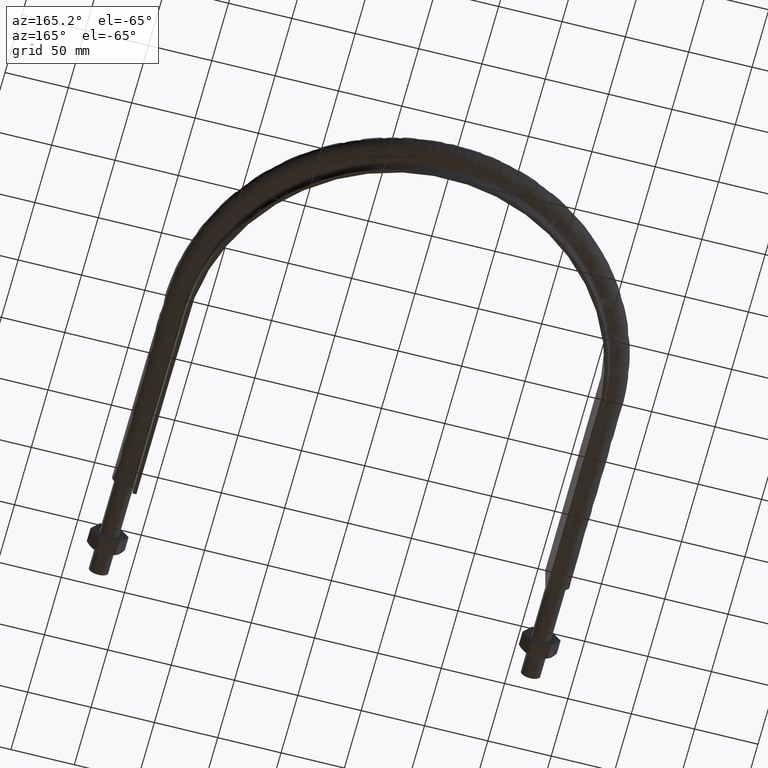
[diagram: clean part render]
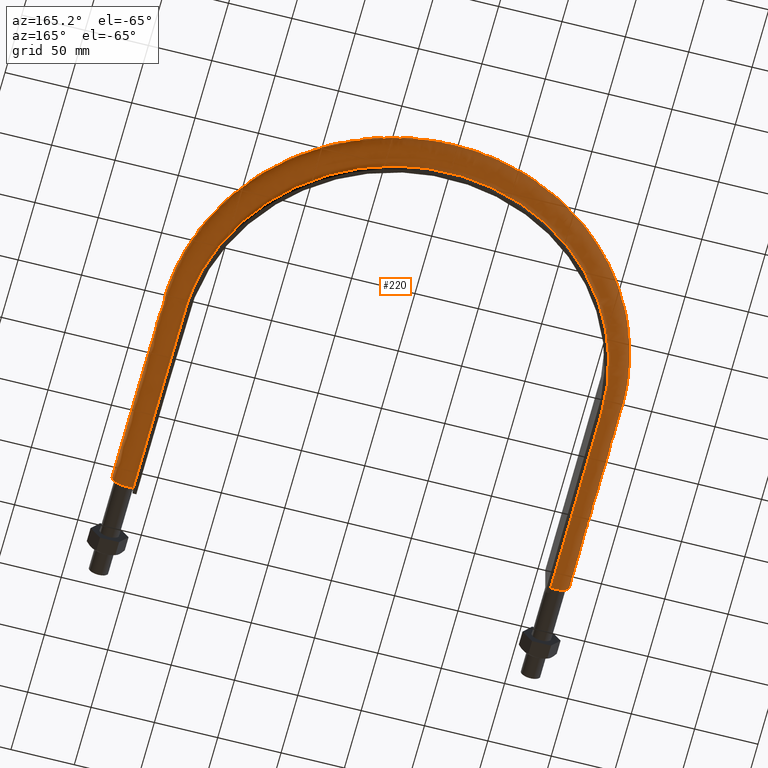
[diagram: same view with one face highlighted and labeled with its STEP entity id]
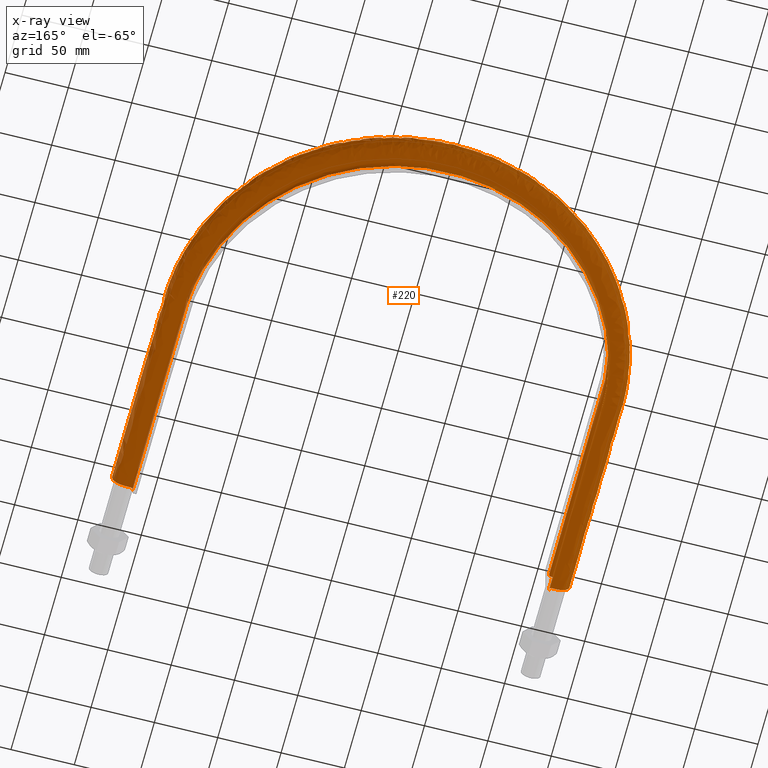
[diagram: x-ray of the same camera — body ghosted, the highlighted face saturated]
A machine part, auxiliary view. The second image highlights one B-rep face of the part: STEP entity #220.
The next image is the same camera in x-ray: the body ghosted, the highlighted face saturated — about 0% of this face is hidden behind the body in this view.
In plain terms, the highlighted face is a freeform B-spline surface patch.
Its self-contained STEP definition (entity closure, byte-faithful):
#220 = ADVANCED_FACE( '', ( #262 ), #263, .F. );
#262 = FACE_OUTER_BOUND( '', #363, .T. );
#263 = B_SPLINE_SURFACE_WITH_KNOTS( '', 3, 3, ( ( #364, #365, #366, #367, #368, #369, #370, #371, #372, #373, #374, #375, #376, #377, #378, #379, #380, #381 ), ( #382, #383, #384, #385, #386, #387, #388, #389, #390, #391, #392, #393, #394, #395, #396, #397, #398, #399 ), ( #400, #401, #402, #403, #404, #405, #406, #407, #408, #409, #410, #411, #412, #413, #414, #415, #416, #417 ), ( #418, #419, #420, #421, #422, #423, #424, #425, #426, #427, #428, #429, #430, #431, #432, #433, #434, #435 ), ( #436, #437, #438, #439, #440, #441, #442, #443, #444, #445, #446, #447, #448, #449, #450, #451, #452, #453 ), ( #454, #455, #456, #457, #458, #459, #460, #461, #462, #463, #464, #465, #466, #467, #468, #469, #470, #471 ), ( #472, #473, #474, #475, #476, #477, #478, #479, #480, #481, #482, #483, #484, #485, #486, #487, #488, #489 ), ( #490, #491, #492, #493, #494, #495, #496, #497, #498, #499, #500, #501, #502, #503, #504, #505, #506, #507 ), ( #508, #509, #510, #511, #512, #513, #514, #515, #516, #517, #518, #519, #520, #521, #522, #523, #524, #525 ), ( #526, #527, #528, #529, #530, #531, #532, #533, #534, #535, #536, #537, #538, #539, #540, #541, #542, #543 ), ( #544, #545, #546, #547, #548, #549, #550, #551, #552, #553, #554, #555, #556, #557, #558, #559, #560, #561 ), ( #562, #563, #564, #565, #566, #567, #568, #569, #570, #571, #572, #573, #574, #575, #576, #577, #578, #579 ), ( #580, #581, #582, #583, #584, #585, #586, #587, #588, #589, #590, #591, #592, #593, #594, #595, #596, #597 ), ( #598, #599, #600, #601, #602, #603, #604, #605, #606, #607, #608, #609, #610, #611, #612, #613, #614, #615 ), ( #616, #617, #618, #619, #620, #621, #622, #623, #624, #625, #626, #627, #628, #629, #630, #631, #632, #633 ), ( #634, #635, #636, #637, #638, #639, #640, #641, #642, #643, #644, #645, #646, #647, #648, #649, #650, #651 ), ( #652, #653, #654, #655, #656, #657, #658, #659, #660, #661, #662, #663, #664, #665, #666, #667, #668, #669 ), ( #670, #671, #672, #673, #674, #675, #676, #677, #678, #679, #680, #681, #682, #683, #684, #685, #686, #687 ), ( #688, #689, #690, #691, #692, #693, #694, #695, #696, #697, #698, #699, #700, #701, #702, #703, #704, #705 ), ( #706, #707, #708, #709, #710, #711, #712, #713, #714, #715, #716, #717, #718, #719, #720, #721, #722, #723 ), ( #724, #725, #726, #727, #728, #729, #730, #731, #732, #733, #734, #735, #736, #737, #738, #739, #740, #741 ), ( #742, #743, #744, #745, #746, #747, #748, #749, #750, #751, #752, #753, #754, #755, #756, #757, #758, #759 ), ( #760, #761, #762, #763, #764, #765, #766, #767, #768, #769, #770, #771, #772, #773, #774, #775, #776, #777 ), ( #778, #779, #780, #781, #782, #783, #784, #785, #786, #787, #788, #789, #790, #791, #792, #793, #794, #795 ), ( #796, #797, #798, #799, #800, #801, #802, #803, #804, #805, #806, #807, #808, #809, #810, #811, #812, #813 ), ( #814, #815, #816, #817, #818, #819, #820, #821, #822, #823, #824, #825, #826, #827, #828, #829, #830, #831 ), ( #832, #833, #834, #835, #836, #837, #838, #839, #840, #841, #842, #843, #844, #845, #846, #847, #848, #849 ), ( #850, #851, #852, #853, #854, #855, #856, #857, #858, #859, #860, #861, #862, #863, #864, #865, #866, #867 ), ( #868, #869, #870, #871, #872, #873, #874, #875, #876, #877, #878, #879, #880, #881, #882, #883, #884, #885 ), ( #886, #887, #888, #889, #890, #891, #892, #893, #894, #895, #896, #897, #898, #899, #900, #901, #902, #903 ), ( #904, #905, #906, #907, #908, #909, #910, #911, #912, #913, #914, #915, #916, #917, #918, #919, #920, #921 ), ( #922, #923, #924, #925, #926, #927, #928, #929, #930, #931, #932, #933, #934, #935, #936, #937, #938, #939 ) ), .UNSPECIFIED., .F., .F., .F., ( 4, 3, 1, 1, 1, 3, 3, 1, 1, 1, 1, 3, 3, 1, 1, 1, 3, 4 ), ( 4, 3, 1, 1, 1, 1, 1, 1, 1, 1, 3, 4 ), ( 0.100000000000000, 0.150000000000000, 0.200000000000000, 0.250000000000000, 0.300000000000000, 0.350000000000000, 0.400000000000000, 0.450000000000000, 0.500000000000000, 0.550000000000000, 0.600000000000000, 0.650000000000000, 0.700000000000000, 0.750000000000000, 0.800000000000000, 0.850000000000000, 0.900000000000000, 0.950000000000000 ), ( 0.000000000000000, 1.00000000000000, 2.00000000000000, 3.00000000000000, 4.00000000000000, 5.00000000000000, 6.00000000000000, 7.00000000000000, 8.00000000000000, 9.00000000000000, 10.0000000000000, 11.0000000000000 ), .UNSPECIFIED. );
#363 = EDGE_LOOP( '', ( #1547, #1548, #1549, #1550 ) );
#364 = CARTESIAN_POINT( '', ( 164.400000000000, 78.5100000000000, -20.0000000000000 ) );
#365 = CARTESIAN_POINT( '', ( 164.400000000000, 130.543333333333, -20.0000000000000 ) );
#366 = CARTESIAN_POINT( '', ( 164.400000000000, 182.576666666667, -20.0000000000000 ) );
#367 = CARTESIAN_POINT( '', ( 164.400000000000, 234.610000000000, -20.0000000000000 ) );
#368 = CARTESIAN_POINT( '', ( 164.400000000000, 253.729852554832, -20.0000000000000 ) );
#369 = CARTESIAN_POINT( '', ( 157.654714406062, 291.995036543922, -20.0000000000000 ) );
#370 = CARTESIAN_POINT( '', ( 128.521300722004, 342.451262640467, -20.0000000000000 ) );
#371 = CARTESIAN_POINT( '', ( 83.8863213984847, 379.905611089014, -20.0000000000000 ) );
#372 = CARTESIAN_POINT( '', ( 29.1334136840586, 399.833751296446, -20.0000000000000 ) );
#373 = CARTESIAN_POINT( '', ( -29.1334136840584, 399.833751296446, -20.0000000000000 ) );
#374 = CARTESIAN_POINT( '', ( -83.8863213984845, 379.905611089015, -20.0000000000000 ) );
#375 = CARTESIAN_POINT( '', ( -128.521300722003, 342.451262640467, -20.0000000000001 ) );
#376 = CARTESIAN_POINT( '', ( -157.654714406062, 291.995036543922, -20.0000000000000 ) );
#377 = CARTESIAN_POINT( '', ( -164.400000000000, 253.729852554832, -20.0000000000000 ) );
#378 = CARTESIAN_POINT( '', ( -164.400000000000, 234.610000000000, -20.0000000000000 ) );
#379 = CARTESIAN_POINT( '', ( -164.400000000000, 182.576666666667, -20.0000000000000 ) );
#380 = CARTESIAN_POINT( '', ( -164.400000000000, 130.543333333333, -20.0000000000000 ) );
#381 = CARTESIAN_POINT( '', ( -164.400000000000, 78.5100000000001, -20.0000000000000 ) );
#382 = CARTESIAN_POINT( '', ( 164.400000000000, 78.5100000000000, -17.3666666666667 ) );
#383 = CARTESIAN_POINT( '', ( 164.400000000000, 130.543333333333, -17.3666666666667 ) );
#384 = CARTESIAN_POINT( '', ( 164.400000000000, 182.576666666667, -17.3666666666667 ) );
#385 = CARTESIAN_POINT( '', ( 164.400000000000, 234.610000000000, -17.3666666666667 ) );
#386 = CARTESIAN_POINT( '', ( 164.400000000000, 253.729852554832, -17.3666666666667 ) );
#387 = CARTESIAN_POINT( '', ( 157.654714406062, 291.995036543922, -17.3666666666667 ) );
#388 = CARTESIAN_POINT( '', ( 128.521300722004, 342.451262640467, -17.3666666666667 ) );
#389 = CARTESIAN_POINT( '', ( 83.8863213984847, 379.905611089014, -17.3666666666667 ) );
#390 = CARTESIAN_POINT( '', ( 29.1334136840586, 399.833751296446, -17.3666666666667 ) );
#391 = CARTESIAN_POINT( '', ( -29.1334136840584, 399.833751296446, -17.3666666666667 ) );
#392 = CARTESIAN_POINT( '', ( -83.8863213984845, 379.905611089015, -17.3666666666667 ) );
#393 = CARTESIAN_POINT( '', ( -128.521300722003, 342.451262640467, -17.3666666666667 ) );
#394 = CARTESIAN_POINT( '', ( -157.654714406062, 291.995036543922, -17.3666666666667 ) );
#395 = CARTESIAN_POINT( '', ( -164.400000000000, 253.729852554832, -17.3666666666667 ) );
#396 = CARTESIAN_POINT( '', ( -164.400000000000, 234.610000000000, -17.3666666666667 ) );
#397 = CARTESIAN_POINT( '', ( -164.400000000000, 182.576666666667, -17.3666666666667 ) );
#398 = CARTESIAN_POINT( '', ( -164.400000000000, 130.543333333333, -17.3666666666667 ) );
#399 = CARTESIAN_POINT( '', ( -164.400000000000, 78.5100000000001, -17.3666666666667 ) );
#400 = CARTESIAN_POINT( '', ( 164.400000000000, 78.5100000000000, -14.7333333333333 ) );
#401 = CARTESIAN_POINT( '', ( 164.400000000000, 130.543333333333, -14.7333333333333 ) );
#402 = CARTESIAN_POINT( '', ( 164.400000000000, 182.576666666667, -14.7333333333333 ) );
#403 = CARTESIAN_POINT( '', ( 164.400000000000, 234.610000000000, -14.7333333333333 ) );
#404 = CARTESIAN_POINT( '', ( 164.400000000000, 253.729852554832, -14.7333333333333 ) );
#405 = CARTESIAN_POINT( '', ( 157.654714406062, 291.995036543922, -14.7333333333333 ) );
#406 = CARTESIAN_POINT( '', ( 128.521300722004, 342.451262640467, -14.7333333333333 ) );
#407 = CARTESIAN_POINT( '', ( 83.8863213984847, 379.905611089014, -14.7333333333333 ) );
#408 = CARTESIAN_POINT( '', ( 29.1334136840586, 399.833751296446, -14.7333333333333 ) );
#409 = CARTESIAN_POINT( '', ( -29.1334136840584, 399.833751296446, -14.7333333333333 ) );
#410 = CARTESIAN_POINT( '', ( -83.8863213984845, 379.905611089015, -14.7333333333333 ) );
#411 = CARTESIAN_POINT( '', ( -128.521300722003, 342.451262640467, -14.7333333333334 ) );
#412 = CARTESIAN_POINT( '', ( -157.654714406062, 291.995036543922, -14.7333333333333 ) );
#413 = CARTESIAN_POINT( '', ( -164.400000000000, 253.729852554832, -14.7333333333333 ) );
#414 = CARTESIAN_POINT( '', ( -164.400000000000, 234.610000000000, -14.7333333333333 ) );
#415 = CARTESIAN_POINT( '', ( -164.400000000000, 182.576666666667, -14.7333333333333 ) );
#416 = CARTESIAN_POINT( '', ( -164.400000000000, 130.543333333333, -14.7333333333333 ) );
#417 = CARTESIAN_POINT( '', ( -164.400000000000, 78.5100000000001, -14.7333333333333 ) );
#418 = CARTESIAN_POINT( '', ( 164.400000000000, 78.5100000000000, -12.1000000000000 ) );
#419 = CARTESIAN_POINT( '', ( 164.400000000000, 130.543333333333, -12.1000000000000 ) );
#420 = CARTESIAN_POINT( '', ( 164.400000000000, 182.576666666667, -12.1000000000000 ) );
#421 = CARTESIAN_POINT( '', ( 164.400000000000, 234.610000000000, -12.1000000000000 ) );
#422 = CARTESIAN_POINT( '', ( 164.400000000000, 253.729852554832, -12.1000000000000 ) );
#423 = CARTESIAN_POINT( '', ( 157.654714406062, 291.995036543922, -12.1000000000000 ) );
#424 = CARTESIAN_POINT( '', ( 128.521300722003, 342.451262640467, -12.1000000000000 ) );
#425 = CARTESIAN_POINT( '', ( 83.8863213984847, 379.905611089014, -12.1000000000000 ) );
#426 = CARTESIAN_POINT( '', ( 29.1334136840586, 399.833751296446, -12.1000000000000 ) );
#427 = CARTESIAN_POINT( '', ( -29.1334136840584, 399.833751296446, -12.1000000000000 ) );
#428 = CARTESIAN_POINT( '', ( -83.8863213984845, 379.905611089015, -12.1000000000000 ) );
#429 = CARTESIAN_POINT( '', ( -128.521300722003, 342.451262640467, -12.1000000000000 ) );
#430 = CARTESIAN_POINT( '', ( -157.654714406062, 291.995036543922, -12.1000000000000 ) );
#431 = CARTESIAN_POINT( '', ( -164.400000000000, 253.729852554832, -12.1000000000000 ) );
#432 = CARTESIAN_POINT( '', ( -164.400000000000, 234.610000000000, -12.1000000000000 ) );
#433 = CARTESIAN_POINT( '', ( -164.400000000000, 182.576666666667, -12.1000000000000 ) );
#434 = CARTESIAN_POINT( '', ( -164.400000000000, 130.543333333333, -12.1000000000000 ) );
#435 = CARTESIAN_POINT( '', ( -164.400000000000, 78.5100000000001, -12.1000000000000 ) );
#436 = CARTESIAN_POINT( '', ( 164.400000000000, 78.5100000000000, -11.8382358417233 ) );
#437 = CARTESIAN_POINT( '', ( 164.400000000000, 130.543333333333, -11.8382358417233 ) );
#438 = CARTESIAN_POINT( '', ( 164.400000000000, 182.576666666667, -11.8382358417233 ) );
#439 = CARTESIAN_POINT( '', ( 164.400000000000, 234.610000000000, -11.8382358417233 ) );
#440 = CARTESIAN_POINT( '', ( 164.400000000000, 253.729852554832, -11.8382358417233 ) );
#441 = CARTESIAN_POINT( '', ( 157.654714406062, 291.995036543922, -11.8382358417233 ) );
#442 = CARTESIAN_POINT( '', ( 128.521300722003, 342.451262640467, -11.8382358417233 ) );
#443 = CARTESIAN_POINT( '', ( 83.8863213984847, 379.905611089014, -11.8382358417233 ) );
#444 = CARTESIAN_POINT( '', ( 29.1334136840586, 399.833751296446, -11.8382358417233 ) );
#445 = CARTESIAN_POINT( '', ( -29.1334136840584, 399.833751296446, -11.8382358417233 ) );
#446 = CARTESIAN_POINT( '', ( -83.8863213984845, 379.905611089015, -11.8382358417233 ) );
#447 = CARTESIAN_POINT( '', ( -128.521300722003, 342.451262640467, -11.8382358417233 ) );
#448 = CARTESIAN_POINT( '', ( -157.654714406062, 291.995036543922, -11.8382358417233 ) );
#449 = CARTESIAN_POINT( '', ( -164.400000000000, 253.729852554832, -11.8382358417233 ) );
#450 = CARTESIAN_POINT( '', ( -164.400000000000, 234.610000000000, -11.8382358417233 ) );
#451 = CARTESIAN_POINT( '', ( -164.400000000000, 182.576666666667, -11.8382358417233 ) );
#452 = CARTESIAN_POINT( '', ( -164.400000000000, 130.543333333333, -11.8382358417233 ) );
#453 = CARTESIAN_POINT( '', ( -164.400000000000, 78.5100000000001, -11.8382358417233 ) );
#454 = CARTESIAN_POINT( '', ( 164.504136256836, 78.5100000000000, -11.3147075251700 ) );
#455 = CARTESIAN_POINT( '', ( 164.504136256836, 130.543333333333, -11.3147075251700 ) );
#456 = CARTESIAN_POINT( '', ( 164.504136256836, 182.576666666667, -11.3147075251700 ) );
#457 = CARTESIAN_POINT( '', ( 164.504136256836, 234.610000000000, -11.3147075251700 ) );
#458 = CARTESIAN_POINT( '', ( 164.504136256836, 253.742093909332, -11.3147075251700 ) );
#459 = CARTESIAN_POINT( '', ( 157.754577981675, 292.031325644286, -11.3147075251700 ) );
#460 = CARTESIAN_POINT( '', ( 128.602710254734, 342.519588942373, -11.3147075251700 ) );
#461 = CARTESIAN_POINT( '', ( 83.9394576972084, 379.997641754704, -11.3147075251700 ) );
#462 = CARTESIAN_POINT( '', ( 29.1518677269413, 399.938410195030, -11.3147075251700 ) );
#463 = CARTESIAN_POINT( '', ( -29.1518677269410, 399.938410195030, -11.3147075251700 ) );
#464 = CARTESIAN_POINT( '', ( -83.9394576972082, 379.997641754704, -11.3147075251700 ) );
#465 = CARTESIAN_POINT( '', ( -128.602710254734, 342.519588942373, -11.3147075251700 ) );
#466 = CARTESIAN_POINT( '', ( -157.754577981675, 292.031325644285, -11.3147075251700 ) );
#467 = CARTESIAN_POINT( '', ( -164.504136256836, 253.742093909332, -11.3147075251700 ) );
#468 = CARTESIAN_POINT( '', ( -164.504136256836, 234.610000000000, -11.3147075251700 ) );
#469 = CARTESIAN_POINT( '', ( -164.504136256836, 182.576666666667, -11.3147075251700 ) );
#470 = CARTESIAN_POINT( '', ( -164.504136256836, 130.543333333333, -11.3147075251700 ) );
#471 = CARTESIAN_POINT( '', ( -164.504136256836, 78.5100000000001, -11.3147075251700 ) );
#472 = CARTESIAN_POINT( '', ( 164.948968710939, 78.5100000000000, -10.6489687109389 ) );
#473 = CARTESIAN_POINT( '', ( 164.948968710939, 130.543333333333, -10.6489687109389 ) );
#474 = CARTESIAN_POINT( '', ( 164.948968710939, 182.576666666667, -10.6489687109389 ) );
#475 = CARTESIAN_POINT( '', ( 164.948968710939, 234.610000000000, -10.6489687109389 ) );
#476 = CARTESIAN_POINT( '', ( 164.948968710939, 253.794384551701, -10.6489687109389 ) );
#477 = CARTESIAN_POINT( '', ( 158.181159085751, 292.186339566070, -10.6489687109389 ) );
#478 = CARTESIAN_POINT( '', ( 128.950462356952, 342.811454210824, -10.6489687109389 ) );
#479 = CARTESIAN_POINT( '', ( 84.1664367617665, 380.390763498421, -10.6489687109389 ) );
#480 = CARTESIAN_POINT( '', ( 29.2306967287994, 400.385475185797, -10.6489687109389 ) );
#481 = CARTESIAN_POINT( '', ( -29.2306967287992, 400.385475185797, -10.6489687109389 ) );
#482 = CARTESIAN_POINT( '', ( -84.1664367617663, 380.390763498421, -10.6489687109389 ) );
#483 = CARTESIAN_POINT( '', ( -128.950462356952, 342.811454210824, -10.6489687109389 ) );
#484 = CARTESIAN_POINT( '', ( -158.181159085751, 292.186339566070, -10.6489687109389 ) );
#485 = CARTESIAN_POINT( '', ( -164.948968710939, 253.794384551701, -10.6489687109389 ) );
#486 = CARTESIAN_POINT( '', ( -164.948968710939, 234.610000000000, -10.6489687109389 ) );
#487 = CARTESIAN_POINT( '', ( -164.948968710939, 182.576666666667, -10.6489687109389 ) );
#488 = CARTESIAN_POINT( '', ( -164.948968710939, 130.543333333333, -10.6489687109389 ) );
#489 = CARTESIAN_POINT( '', ( -164.948968710939, 78.5100000000001, -10.6489687109389 ) );
#490 = CARTESIAN_POINT( '', ( 165.614707525170, 78.5100000000000, -10.2041362568359 ) );
#491 = CARTESIAN_POINT( '', ( 165.614707525170, 130.543333333333, -10.2041362568359 ) );
#492 = CARTESIAN_POINT( '', ( 165.614707525170, 182.576666666667, -10.2041362568359 ) );
#493 = CARTESIAN_POINT( '', ( 165.614707525170, 234.610000000000, -10.2041362568359 ) );
#494 = CARTESIAN_POINT( '', ( 165.614707525170, 253.872643028403, -10.2041362568359 ) );
#495 = CARTESIAN_POINT( '', ( 158.819582824356, 292.418334294706, -10.2041362568359 ) );
#496 = CARTESIAN_POINT( '', ( 129.470910157111, 343.248261453508, -10.2041362568359 ) );
#497 = CARTESIAN_POINT( '', ( 84.5061349377886, 380.979111765497, -10.2041362568359 ) );
#498 = CARTESIAN_POINT( '', ( 29.3486726672454, 401.054555227265, -10.2041362568359 ) );
#499 = CARTESIAN_POINT( '', ( -29.3486726672452, 401.054555227265, -10.2041362568359 ) );
#500 = CARTESIAN_POINT( '', ( -84.5061349377885, 380.979111765497, -10.2041362568359 ) );
#501 = CARTESIAN_POINT( '', ( -129.470910157111, 343.248261453508, -10.2041362568359 ) );
#502 = CARTESIAN_POINT( '', ( -158.819582824356, 292.418334294706, -10.2041362568359 ) );
#503 = CARTESIAN_POINT( '', ( -165.614707525170, 253.872643028404, -10.2041362568359 ) );
#504 = CARTESIAN_POINT( '', ( -165.614707525170, 234.610000000000, -10.2041362568359 ) );
#505 = CARTESIAN_POINT( '', ( -165.614707525170, 182.576666666667, -10.2041362568359 ) );
#506 = CARTESIAN_POINT( '', ( -165.614707525170, 130.543333333333, -10.2041362568359 ) );
#507 = CARTESIAN_POINT( '', ( -165.614707525170, 78.5100000000001, -10.2041362568359 ) );
#508 = CARTESIAN_POINT( '', ( 166.138235841723, 78.5100000000000, -10.1000000000000 ) );
#509 = CARTESIAN_POINT( '', ( 166.138235841723, 130.543333333333, -10.1000000000000 ) );
#510 = CARTESIAN_POINT( '', ( 166.138235841723, 182.576666666667, -10.1000000000000 ) );
#511 = CARTESIAN_POINT( '', ( 166.138235841723, 234.610000000000, -10.1000000000000 ) );
#512 = CARTESIAN_POINT( '', ( 166.138235841723, 253.934184473319, -10.1000000000000 ) );
#513 = CARTESIAN_POINT( '', ( 159.321630921861, 292.600771922100, -10.1000000000000 ) );
#514 = CARTESIAN_POINT( '', ( 129.880183516042, 343.591760969434, -10.1000000000000 ) );
#515 = CARTESIAN_POINT( '', ( 84.7732691508276, 381.441781165606, -10.1000000000000 ) );
#516 = CARTESIAN_POINT( '', ( 29.4414474058188, 401.580711041319, -10.1000000000000 ) );
#517 = CARTESIAN_POINT( '', ( -29.4414474058186, 401.580711041319, -10.1000000000000 ) );
#518 = CARTESIAN_POINT( '', ( -84.7732691508274, 381.441781165606, -10.1000000000000 ) );
#519 = CARTESIAN_POINT( '', ( -129.880183516042, 343.591760969434, -10.1000000000000 ) );
#520 = CARTESIAN_POINT( '', ( -159.321630921860, 292.600771922100, -10.1000000000000 ) );
#521 = CARTESIAN_POINT( '', ( -166.138235841723, 253.934184473319, -10.1000000000000 ) );
#522 = CARTESIAN_POINT( '', ( -166.138235841723, 234.610000000000, -10.1000000000000 ) );
#523 = CARTESIAN_POINT( '', ( -166.138235841723, 182.576666666667, -10.1000000000000 ) );
#524 = CARTESIAN_POINT( '', ( -166.138235841723, 130.543333333333, -10.1000000000000 ) );
#525 = CARTESIAN_POINT( '', ( -166.138235841723, 78.5100000000001, -10.1000000000000 ) );
#526 = CARTESIAN_POINT( '', ( 166.400000000000, 78.5100000000000, -10.1000000000000 ) );
#527 = CARTESIAN_POINT( '', ( 166.400000000000, 130.543333333333, -10.1000000000000 ) );
#528 = CARTESIAN_POINT( '', ( 166.400000000000, 182.576666666667, -10.1000000000000 ) );
#529 = CARTESIAN_POINT( '', ( 166.400000000000, 234.610000000000, -10.1000000000000 ) );
#530 = CARTESIAN_POINT( '', ( 166.400000000000, 253.964955195777, -10.1000000000000 ) );
#531 = CARTESIAN_POINT( '', ( 159.572654970613, 292.691990735796, -10.1000000000000 ) );
#532 = CARTESIAN_POINT( '', ( 130.084820195507, 343.763510727396, -10.1000000000000 ) );
#533 = CARTESIAN_POINT( '', ( 84.9068362573470, 381.673115865660, -10.1000000000000 ) );
#534 = CARTESIAN_POINT( '', ( 29.4878347751055, 401.843788948346, -10.1000000000000 ) );
#535 = CARTESIAN_POINT( '', ( -29.4878347751053, 401.843788948346, -10.1000000000000 ) );
#536 = CARTESIAN_POINT( '', ( -84.9068362573468, 381.673115865661, -10.1000000000000 ) );
#537 = CARTESIAN_POINT( '', ( -130.084820195507, 343.763510727396, -10.1000000000000 ) );
#538 = CARTESIAN_POINT( '', ( -159.572654970613, 292.691990735796, -10.1000000000000 ) );
#539 = CARTESIAN_POINT( '', ( -166.400000000000, 253.964955195777, -10.1000000000000 ) );
#540 = CARTESIAN_POINT( '', ( -166.400000000000, 234.610000000000, -10.1000000000000 ) );
#541 = CARTESIAN_POINT( '', ( -166.400000000000, 182.576666666667, -10.1000000000000 ) );
#542 = CARTESIAN_POINT( '', ( -166.400000000000, 130.543333333333, -10.1000000000000 ) );
#543 = CARTESIAN_POINT( '', ( -166.400000000000, 78.5100000000001, -10.1000000000000 ) );
#544 = CARTESIAN_POINT( '', ( 167.766666666667, 78.5100000000000, -10.1000000000000 ) );
#545 = CARTESIAN_POINT( '', ( 167.766666666667, 130.543333333333, -10.1000000000000 ) );
#546 = CARTESIAN_POINT( '', ( 167.766666666667, 182.576666666667, -10.1000000000000 ) );
#547 = CARTESIAN_POINT( '', ( 167.766666666667, 234.610000000000, -10.1000000000000 ) );
#548 = CARTESIAN_POINT( '', ( 167.766666666667, 254.125608667089, -10.1000000000000 ) );
#549 = CARTESIAN_POINT( '', ( 160.883247689722, 293.168242766911, -10.1000000000000 ) );
#550 = CARTESIAN_POINT( '', ( 131.153225169068, 344.660213586798, -10.1000000000000 ) );
#551 = CARTESIAN_POINT( '', ( 85.6041880775696, 382.880910796368, -10.1000000000000 ) );
#552 = CARTESIAN_POINT( '', ( 29.7300225206543, 403.217314677144, -10.1000000000000 ) );
#553 = CARTESIAN_POINT( '', ( -29.7300225206541, 403.217314677144, -10.1000000000000 ) );
#554 = CARTESIAN_POINT( '', ( -85.6041880775694, 382.880910796369, -10.1000000000000 ) );
#555 = CARTESIAN_POINT( '', ( -131.153225169068, 344.660213586798, -10.1000000000000 ) );
#556 = CARTESIAN_POINT( '', ( -160.883247689722, 293.168242766911, -10.1000000000000 ) );
#557 = CARTESIAN_POINT( '', ( -167.766666666667, 254.125608667089, -10.1000000000000 ) );
#558 = CARTESIAN_POINT( '', ( -167.766666666667, 234.610000000000, -10.1000000000000 ) );
#559 = CARTESIAN_POINT( '', ( -167.766666666667, 182.576666666667, -10.1000000000000 ) );
#560 = CARTESIAN_POINT( '', ( -167.766666666667, 130.543333333333, -10.1000000000000 ) );
#561 = CARTESIAN_POINT( '', ( -167.766666666667, 78.5100000000001, -10.1000000000000 ) );
#562 = CARTESIAN_POINT( '', ( 169.133333333333, 78.5100000000000, -10.1000000000000 ) );
#563 = CARTESIAN_POINT( '', ( 169.133333333333, 130.543333333333, -10.1000000000000 ) );
#564 = CARTESIAN_POINT( '', ( 169.133333333333, 182.576666666667, -10.1000000000000 ) );
#565 = CARTESIAN_POINT( '', ( 169.133333333333, 234.610000000000, -10.1000000000000 ) );
#566 = CARTESIAN_POINT( '', ( 169.133333333333, 254.286262138401, -10.1000000000000 ) );
#567 = CARTESIAN_POINT( '', ( 162.193840408832, 293.644494798025, -10.1000000000000 ) );
#568 = CARTESIAN_POINT( '', ( 132.221630142629, 345.556916446200, -10.1000000000000 ) );
#569 = CARTESIAN_POINT( '', ( 86.3015398977922, 384.088705727076, -10.1000000000000 ) );
#570 = CARTESIAN_POINT( '', ( 29.9722102662030, 404.590840405943, -10.1000000000000 ) );
#571 = CARTESIAN_POINT( '', ( -29.9722102662028, 404.590840405943, -10.1000000000000 ) );
#572 = CARTESIAN_POINT( '', ( -86.3015398977920, 384.088705727077, -10.1000000000000 ) );
#573 = CARTESIAN_POINT( '', ( -132.221630142629, 345.556916446200, -10.1000000000000 ) );
#574 = CARTESIAN_POINT( '', ( -162.193840408832, 293.644494798025, -10.1000000000000 ) );
#575 = CARTESIAN_POINT( '', ( -169.133333333333, 254.286262138401, -10.1000000000000 ) );
#576 = CARTESIAN_POINT( '', ( -169.133333333333, 234.610000000000, -10.1000000000000 ) );
#577 = CARTESIAN_POINT( '', ( -169.133333333333, 182.576666666667, -10.1000000000000 ) );
#578 = CARTESIAN_POINT( '', ( -169.133333333333, 130.543333333333, -10.1000000000000 ) );
#579 = CARTESIAN_POINT( '', ( -169.133333333333, 78.5100000000001, -10.1000000000000 ) );
#580 = CARTESIAN_POINT( '', ( 170.500000000000, 78.5100000000000, -10.1000000000000 ) );
#581 = CARTESIAN_POINT( '', ( 170.500000000000, 130.543333333333, -10.1000000000000 ) );
#582 = CARTESIAN_POINT( '', ( 170.500000000000, 182.576666666667, -10.1000000000000 ) );
#583 = CARTESIAN_POINT( '', ( 170.500000000000, 234.610000000000, -10.1000000000000 ) );
#584 = CARTESIAN_POINT( '', ( 170.500000000000, 254.446915609713, -10.1000000000000 ) );
#585 = CARTESIAN_POINT( '', ( 163.504433127941, 294.120746829140, -10.1000000000000 ) );
#586 = CARTESIAN_POINT( '', ( 133.290035116190, 346.453619305602, -10.1000000000000 ) );
#587 = CARTESIAN_POINT( '', ( 86.9988917180148, 385.296500657785, -10.1000000000000 ) );
#588 = CARTESIAN_POINT( '', ( 30.2143980117518, 405.964366134741, -10.1000000000000 ) );
#589 = CARTESIAN_POINT( '', ( -30.2143980117516, 405.964366134741, -10.1000000000000 ) );
#590 = CARTESIAN_POINT( '', ( -86.9988917180146, 385.296500657785, -10.1000000000000 ) );
#591 = CARTESIAN_POINT( '', ( -133.290035116190, 346.453619305602, -10.1000000000000 ) );
#592 = CARTESIAN_POINT( '', ( -163.504433127941, 294.120746829139, -10.1000000000000 ) );
#593 = CARTESIAN_POINT( '', ( -170.500000000000, 254.446915609713, -10.1000000000000 ) );
#594 = CARTESIAN_POINT( '', ( -170.500000000000, 234.610000000000, -10.1000000000000 ) );
#595 = CARTESIAN_POINT( '', ( -170.500000000000, 182.576666666667, -10.1000000000000 ) );
#596 = CARTESIAN_POINT( '', ( -170.500000000000, 130.543333333333, -10.1000000000000 ) );
#597 = CARTESIAN_POINT( '', ( -170.500000000000, 78.5100000000001, -10.1000000000000 ) );
#598 = CARTESIAN_POINT( '', ( 172.613419413283, 78.5100000000000, -10.1000000000000 ) );
#599 = CARTESIAN_POINT( '', ( 172.613419413283, 130.543333333333, -10.1000000000000 ) );
#600 = CARTESIAN_POINT( '', ( 172.613419413283, 182.576666666667, -10.1000000000000 ) );
#601 = CARTESIAN_POINT( '', ( 172.613419413283, 234.610000000000, -10.1000000000000 ) );
#602 = CARTESIAN_POINT( '', ( 172.613419413283, 254.695350852456, -10.1000000000000 ) );
#603 = CARTESIAN_POINT( '', ( 165.531139539264, 294.857225088778, -10.1000000000000 ) );
#604 = CARTESIAN_POINT( '', ( 134.942221320364, 347.840284596582, -10.1000000000000 ) );
#605 = CARTESIAN_POINT( '', ( 88.0772796751465, 387.164240111802, -10.1000000000000 ) );
#606 = CARTESIAN_POINT( '', ( 30.5889182188996, 408.088392432219, -10.1000000000000 ) );
#607 = CARTESIAN_POINT( '', ( -30.5889182188993, 408.088392432219, -10.1000000000000 ) );
#608 = CARTESIAN_POINT( '', ( -88.0772796751464, 387.164240111802, -10.1000000000000 ) );
#609 = CARTESIAN_POINT( '', ( -134.942221320364, 347.840284596582, -10.1000000000000 ) );
#610 = CARTESIAN_POINT( '', ( -165.531139539264, 294.857225088778, -10.1000000000000 ) );
#611 = CARTESIAN_POINT( '', ( -172.613419413283, 254.695350852456, -10.1000000000000 ) );
#612 = CARTESIAN_POINT( '', ( -172.613419413283, 234.610000000000, -10.1000000000000 ) );
#613 = CARTESIAN_POINT( '', ( -172.613419413283, 182.576666666667, -10.1000000000000 ) );
#614 = CARTESIAN_POINT( '', ( -172.613419413283, 130.543333333333, -10.1000000000000 ) );
#615 = CARTESIAN_POINT( '', ( -172.613419413283, 78.5100000000001, -10.1000000000000 ) );
#616 = CARTESIAN_POINT( '', ( 176.840258239849, 78.5100000000000, -8.72661681244669 ) );
#617 = CARTESIAN_POINT( '', ( 176.840258239849, 130.543333333333, -8.72661681244669 ) );
#618 = CARTESIAN_POINT( '', ( 176.840258239849, 182.576666666667, -8.72661681244669 ) );
#619 = CARTESIAN_POINT( '', ( 176.840258239849, 234.610000000000, -8.72661681244669 ) );
#620 = CARTESIAN_POINT( '', ( 176.840258239849, 255.192221337943, -8.72661681244669 ) );
#621 = CARTESIAN_POINT( '', ( 169.584552361908, 296.330181608055, -8.72661681244669 ) );
#622 = CARTESIAN_POINT( '', ( 138.246593728713, 350.613615178542, -8.72661681244669 ) );
#623 = CARTESIAN_POINT( '', ( 90.2340555894100, 390.899719019836, -8.72661681244669 ) );
#624 = CARTESIAN_POINT( '', ( 31.3379586331951, 412.336445027174, -8.72661681244669 ) );
#625 = CARTESIAN_POINT( '', ( -31.3379586331949, 412.336445027174, -8.72661681244670 ) );
#626 = CARTESIAN_POINT( '', ( -90.2340555894098, 390.899719019836, -8.72661681244669 ) );
#627 = CARTESIAN_POINT( '', ( -138.246593728713, 350.613615178542, -8.72661681244670 ) );
#628 = CARTESIAN_POINT( '', ( -169.584552361908, 296.330181608055, -8.72661681244669 ) );
#629 = CARTESIAN_POINT( '', ( -176.840258239849, 255.192221337943, -8.72661681244669 ) );
#630 = CARTESIAN_POINT( '', ( -176.840258239849, 234.610000000000, -8.72661681244669 ) );
#631 = CARTESIAN_POINT( '', ( -176.840258239849, 182.576666666667, -8.72661681244669 ) );
#632 = CARTESIAN_POINT( '', ( -176.840258239849, 130.543333333333, -8.72661681244669 ) );
#633 = CARTESIAN_POINT( '', ( -176.840258239849, 78.5100000000001, -8.72661681244669 ) );
#634 = CARTESIAN_POINT( '', ( 180.758753329527, 78.5100000000000, -3.33327101555837 ) );
#635 = CARTESIAN_POINT( '', ( 180.758753329527, 130.543333333333, -3.33327101555837 ) );
#636 = CARTESIAN_POINT( '', ( 180.758753329527, 182.576666666667, -3.33327101555837 ) );
#637 = CARTESIAN_POINT( '', ( 180.758753329527, 234.610000000000, -3.33327101555837 ) );
#638 = CARTESIAN_POINT( '', ( 180.758753329528, 255.652845609999, -3.33327101555837 ) );
#639 = CARTESIAN_POINT( '', ( 173.342272704151, 297.695687397351, -3.33327101555837 ) );
#640 = CARTESIAN_POINT( '', ( 141.309915418483, 353.184634021078, -3.33327101555837 ) );
#641 = CARTESIAN_POINT( '', ( 92.2334968211080, 394.362698413970, -3.33327101555837 ) );
#642 = CARTESIAN_POINT( '', ( 32.0323572856681, 416.274606361694, -3.33327101555837 ) );
#643 = CARTESIAN_POINT( '', ( -32.0323572856679, 416.274606361694, -3.33327101555837 ) );
#644 = CARTESIAN_POINT( '', ( -92.2334968211077, 394.362698413971, -3.33327101555837 ) );
#645 = CARTESIAN_POINT( '', ( -141.309915418483, 353.184634021078, -3.33327101555838 ) );
#646 = CARTESIAN_POINT( '', ( -173.342272704151, 297.695687397351, -3.33327101555837 ) );
#647 = CARTESIAN_POINT( '', ( -180.758753329527, 255.652845609999, -3.33327101555837 ) );
#648 = CARTESIAN_POINT( '', ( -180.758753329527, 234.610000000000, -3.33327101555837 ) );
#649 = CARTESIAN_POINT( '', ( -180.758753329527, 182.576666666667, -3.33327101555837 ) );
#650 = CARTESIAN_POINT( '', ( -180.758753329527, 130.543333333333, -3.33327101555837 ) );
#651 = CARTESIAN_POINT( '', ( -180.758753329527, 78.5100000000001, -3.33327101555837 ) );
#652 = CARTESIAN_POINT( '', ( 180.758753329527, 78.5100000000000, 3.33327101555838 ) );
#653 = CARTESIAN_POINT( '', ( 180.758753329527, 130.543333333333, 3.33327101555838 ) );
#654 = CARTESIAN_POINT( '', ( 180.758753329527, 182.576666666667, 3.33327101555838 ) );
#655 = CARTESIAN_POINT( '', ( 180.758753329527, 234.610000000000, 3.33327101555838 ) );
#656 = CARTESIAN_POINT( '', ( 180.758753329528, 255.652845609999, 3.33327101555838 ) );
#657 = CARTESIAN_POINT( '', ( 173.342272704151, 297.695687397351, 3.33327101555837 ) );
#658 = CARTESIAN_POINT( '', ( 141.309915418483, 353.184634021078, 3.33327101555838 ) );
#659 = CARTESIAN_POINT( '', ( 92.2334968211080, 394.362698413970, 3.33327101555838 ) );
#660 = CARTESIAN_POINT( '', ( 32.0323572856681, 416.274606361694, 3.33327101555837 ) );
#661 = CARTESIAN_POINT( '', ( -32.0323572856679, 416.274606361694, 3.33327101555838 ) );
#662 = CARTESIAN_POINT( '', ( -92.2334968211077, 394.362698413971, 3.33327101555837 ) );
#663 = CARTESIAN_POINT( '', ( -141.309915418483, 353.184634021078, 3.33327101555838 ) );
#664 = CARTESIAN_POINT( '', ( -173.342272704151, 297.695687397351, 3.33327101555837 ) );
#665 = CARTESIAN_POINT( '', ( -180.758753329527, 255.652845609999, 3.33327101555838 ) );
#666 = CARTESIAN_POINT( '', ( -180.758753329527, 234.610000000000, 3.33327101555838 ) );
#667 = CARTESIAN_POINT( '', ( -180.758753329527, 182.576666666667, 3.33327101555838 ) );
#668 = CARTESIAN_POINT( '', ( -180.758753329527, 130.543333333333, 3.33327101555838 ) );
#669 = CARTESIAN_POINT( '', ( -180.758753329527, 78.5100000000001, 3.33327101555838 ) );
#670 = CARTESIAN_POINT( '', ( 176.840258239849, 78.5100000000000, 8.72661681244669 ) );
#671 = CARTESIAN_POINT( '', ( 176.840258239849, 130.543333333333, 8.72661681244669 ) );
#672 = CARTESIAN_POINT( '', ( 176.840258239849, 182.576666666667, 8.72661681244669 ) );
#673 = CARTESIAN_POINT( '', ( 176.840258239849, 234.610000000000, 8.72661681244669 ) );
#674 = CARTESIAN_POINT( '', ( 176.840258239849, 255.192221337943, 8.72661681244669 ) );
#675 = CARTESIAN_POINT( '', ( 169.584552361908, 296.330181608055, 8.72661681244669 ) );
#676 = CARTESIAN_POINT( '', ( 138.246593728713, 350.613615178542, 8.72661681244669 ) );
#677 = CARTESIAN_POINT( '', ( 90.2340555894100, 390.899719019835, 8.72661681244670 ) );
#678 = CARTESIAN_POINT( '', ( 31.3379586331951, 412.336445027174, 8.72661681244669 ) );
#679 = CARTESIAN_POINT( '', ( -31.3379586331949, 412.336445027174, 8.72661681244670 ) );
#680 = CARTESIAN_POINT( '', ( -90.2340555894098, 390.899719019836, 8.72661681244669 ) );
#681 = CARTESIAN_POINT( '', ( -138.246593728713, 350.613615178542, 8.72661681244671 ) );
#682 = CARTESIAN_POINT( '', ( -169.584552361908, 296.330181608055, 8.72661681244669 ) );
#683 = CARTESIAN_POINT( '', ( -176.840258239849, 255.192221337943, 8.72661681244669 ) );
#684 = CARTESIAN_POINT( '', ( -176.840258239849, 234.610000000000, 8.72661681244669 ) );
#685 = CARTESIAN_POINT( '', ( -176.840258239849, 182.576666666667, 8.72661681244669 ) );
#686 = CARTESIAN_POINT( '', ( -176.840258239849, 130.543333333333, 8.72661681244669 ) );
#687 = CARTESIAN_POINT( '', ( -176.840258239849, 78.5100000000001, 8.72661681244669 ) );
#688 = CARTESIAN_POINT( '', ( 172.613419413283, 78.5100000000000, 10.1000000000000 ) );
#689 = CARTESIAN_POINT( '', ( 172.613419413283, 130.543333333333, 10.1000000000000 ) );
#690 = CARTESIAN_POINT( '', ( 172.613419413283, 182.576666666667, 10.1000000000000 ) );
#691 = CARTESIAN_POINT( '', ( 172.613419413283, 234.610000000000, 10.1000000000000 ) );
#692 = CARTESIAN_POINT( '', ( 172.613419413283, 254.695350852456, 10.1000000000000 ) );
#693 = CARTESIAN_POINT( '', ( 165.531139539264, 294.857225088778, 10.1000000000000 ) );
#694 = CARTESIAN_POINT( '', ( 134.942221320364, 347.840284596582, 10.1000000000000 ) );
#695 = CARTESIAN_POINT( '', ( 88.0772796751465, 387.164240111802, 10.1000000000000 ) );
#696 = CARTESIAN_POINT( '', ( 30.5889182188996, 408.088392432219, 10.1000000000000 ) );
#697 = CARTESIAN_POINT( '', ( -30.5889182188993, 408.088392432219, 10.1000000000000 ) );
#698 = CARTESIAN_POINT( '', ( -88.0772796751464, 387.164240111802, 10.1000000000000 ) );
#699 = CARTESIAN_POINT( '', ( -134.942221320364, 347.840284596582, 10.1000000000000 ) );
#700 = CARTESIAN_POINT( '', ( -165.531139539264, 294.857225088778, 10.1000000000000 ) );
#701 = CARTESIAN_POINT( '', ( -172.613419413283, 254.695350852456, 10.1000000000000 ) );
#702 = CARTESIAN_POINT( '', ( -172.613419413283, 234.610000000000, 10.1000000000000 ) );
#703 = CARTESIAN_POINT( '', ( -172.613419413283, 182.576666666667, 10.1000000000000 ) );
#704 = CARTESIAN_POINT( '', ( -172.613419413283, 130.543333333333, 10.1000000000000 ) );
#705 = CARTESIAN_POINT( '', ( -172.613419413283, 78.5100000000001, 10.1000000000000 ) );
#706 = CARTESIAN_POINT( '', ( 170.500000000000, 78.5100000000000, 10.1000000000000 ) );
#707 = CARTESIAN_POINT( '', ( 170.500000000000, 130.543333333333, 10.1000000000000 ) );
#708 = CARTESIAN_POINT( '', ( 170.500000000000, 182.576666666667, 10.1000000000000 ) );
#709 = CARTESIAN_POINT( '', ( 170.500000000000, 234.610000000000, 10.1000000000000 ) );
#710 = CARTESIAN_POINT( '', ( 170.500000000000, 254.446915609713, 10.1000000000000 ) );
#711 = CARTESIAN_POINT( '', ( 163.504433127941, 294.120746829140, 10.1000000000000 ) );
#712 = CARTESIAN_POINT( '', ( 133.290035116190, 346.453619305602, 10.1000000000000 ) );
#713 = CARTESIAN_POINT( '', ( 86.9988917180148, 385.296500657785, 10.1000000000000 ) );
#714 = CARTESIAN_POINT( '', ( 30.2143980117518, 405.964366134741, 10.1000000000000 ) );
#715 = CARTESIAN_POINT( '', ( -30.2143980117516, 405.964366134741, 10.1000000000000 ) );
#716 = CARTESIAN_POINT( '', ( -86.9988917180146, 385.296500657785, 10.1000000000000 ) );
#717 = CARTESIAN_POINT( '', ( -133.290035116190, 346.453619305602, 10.1000000000000 ) );
#718 = CARTESIAN_POINT( '', ( -163.504433127941, 294.120746829139, 10.1000000000000 ) );
#719 = CARTESIAN_POINT( '', ( -170.500000000000, 254.446915609713, 10.1000000000000 ) );
#720 = CARTESIAN_POINT( '', ( -170.500000000000, 234.610000000000, 10.1000000000000 ) );
#721 = CARTESIAN_POINT( '', ( -170.500000000000, 182.576666666667, 10.1000000000000 ) );
#722 = CARTESIAN_POINT( '', ( -170.500000000000, 130.543333333333, 10.1000000000000 ) );
#723 = CARTESIAN_POINT( '', ( -170.500000000000, 78.5100000000001, 10.1000000000000 ) );
#724 = CARTESIAN_POINT( '', ( 169.133333333333, 78.5100000000000, 10.1000000000000 ) );
#725 = CARTESIAN_POINT( '', ( 169.133333333333, 130.543333333333, 10.1000000000000 ) );
#726 = CARTESIAN_POINT( '', ( 169.133333333333, 182.576666666667, 10.1000000000000 ) );
#727 = CARTESIAN_POINT( '', ( 169.133333333333, 234.610000000000, 10.1000000000000 ) );
#728 = CARTESIAN_POINT( '', ( 169.133333333333, 254.286262138401, 10.1000000000000 ) );
#729 = CARTESIAN_POINT( '', ( 162.193840408832, 293.644494798025, 10.1000000000000 ) );
#730 = CARTESIAN_POINT( '', ( 132.221630142629, 345.556916446200, 10.1000000000000 ) );
#731 = CARTESIAN_POINT( '', ( 86.3015398977922, 384.088705727076, 10.1000000000000 ) );
#732 = CARTESIAN_POINT( '', ( 29.9722102662030, 404.590840405943, 10.1000000000000 ) );
#733 = CARTESIAN_POINT( '', ( -29.9722102662028, 404.590840405943, 10.1000000000000 ) );
#734 = CARTESIAN_POINT( '', ( -86.3015398977920, 384.088705727077, 10.1000000000000 ) );
#735 = CARTESIAN_POINT( '', ( -132.221630142629, 345.556916446200, 10.1000000000000 ) );
#736 = CARTESIAN_POINT( '', ( -162.193840408832, 293.644494798025, 10.1000000000000 ) );
#737 = CARTESIAN_POINT( '', ( -169.133333333333, 254.286262138401, 10.1000000000000 ) );
#738 = CARTESIAN_POINT( '', ( -169.133333333333, 234.610000000000, 10.1000000000000 ) );
#739 = CARTESIAN_POINT( '', ( -169.133333333333, 182.576666666667, 10.1000000000000 ) );
#740 = CARTESIAN_POINT( '', ( -169.133333333333, 130.543333333333, 10.1000000000000 ) );
#741 = CARTESIAN_POINT( '', ( -169.133333333333, 78.5100000000001, 10.1000000000000 ) );
#742 = CARTESIAN_POINT( '', ( 167.766666666667, 78.5100000000000, 10.1000000000000 ) );
#743 = CARTESIAN_POINT( '', ( 167.766666666667, 130.543333333333, 10.1000000000000 ) );
#744 = CARTESIAN_POINT( '', ( 167.766666666667, 182.576666666667, 10.1000000000000 ) );
#745 = CARTESIAN_POINT( '', ( 167.766666666667, 234.610000000000, 10.1000000000000 ) );
#746 = CARTESIAN_POINT( '', ( 167.766666666667, 254.125608667089, 10.1000000000000 ) );
#747 = CARTESIAN_POINT( '', ( 160.883247689722, 293.168242766911, 10.1000000000000 ) );
#748 = CARTESIAN_POINT( '', ( 131.153225169068, 344.660213586798, 10.1000000000000 ) );
#749 = CARTESIAN_POINT( '', ( 85.6041880775696, 382.880910796368, 10.1000000000000 ) );
#750 = CARTESIAN_POINT( '', ( 29.7300225206543, 403.217314677144, 10.1000000000000 ) );
#751 = CARTESIAN_POINT( '', ( -29.7300225206541, 403.217314677144, 10.1000000000000 ) );
#752 = CARTESIAN_POINT( '', ( -85.6041880775694, 382.880910796369, 10.1000000000000 ) );
#753 = CARTESIAN_POINT( '', ( -131.153225169068, 344.660213586798, 10.1000000000000 ) );
#754 = CARTESIAN_POINT( '', ( -160.883247689722, 293.168242766911, 10.1000000000000 ) );
#755 = CARTESIAN_POINT( '', ( -167.766666666667, 254.125608667089, 10.1000000000000 ) );
#756 = CARTESIAN_POINT( '', ( -167.766666666667, 234.610000000000, 10.1000000000000 ) );
#757 = CARTESIAN_POINT( '', ( -167.766666666667, 182.576666666667, 10.1000000000000 ) );
#758 = CARTESIAN_POINT( '', ( -167.766666666667, 130.543333333333, 10.1000000000000 ) );
#759 = CARTESIAN_POINT( '', ( -167.766666666667, 78.5100000000001, 10.1000000000000 ) );
#760 = CARTESIAN_POINT( '', ( 166.400000000000, 78.5100000000000, 10.1000000000000 ) );
#761 = CARTESIAN_POINT( '', ( 166.400000000000, 130.543333333333, 10.1000000000000 ) );
#762 = CARTESIAN_POINT( '', ( 166.400000000000, 182.576666666667, 10.1000000000000 ) );
#763 = CARTESIAN_POINT( '', ( 166.400000000000, 234.610000000000, 10.1000000000000 ) );
#764 = CARTESIAN_POINT( '', ( 166.400000000000, 253.964955195777, 10.1000000000000 ) );
#765 = CARTESIAN_POINT( '', ( 159.572654970613, 292.691990735796, 10.1000000000000 ) );
#766 = CARTESIAN_POINT( '', ( 130.084820195507, 343.763510727396, 10.1000000000000 ) );
#767 = CARTESIAN_POINT( '', ( 84.9068362573471, 381.673115865660, 10.1000000000000 ) );
#768 = CARTESIAN_POINT( '', ( 29.4878347751055, 401.843788948346, 10.1000000000000 ) );
#769 = CARTESIAN_POINT( '', ( -29.4878347751054, 401.843788948346, 10.1000000000000 ) );
#770 = CARTESIAN_POINT( '', ( -84.9068362573469, 381.673115865661, 10.1000000000000 ) );
#771 = CARTESIAN_POINT( '', ( -130.084820195507, 343.763510727396, 10.1000000000000 ) );
#772 = CARTESIAN_POINT( '', ( -159.572654970613, 292.691990735796, 10.1000000000000 ) );
#773 = CARTESIAN_POINT( '', ( -166.400000000000, 253.964955195777, 10.1000000000000 ) );
#774 = CARTESIAN_POINT( '', ( -166.400000000000, 234.610000000000, 10.1000000000000 ) );
#775 = CARTESIAN_POINT( '', ( -166.400000000000, 182.576666666667, 10.1000000000000 ) );
#776 = CARTESIAN_POINT( '', ( -166.400000000000, 130.543333333333, 10.1000000000000 ) );
#777 = CARTESIAN_POINT( '', ( -166.400000000000, 78.5100000000001, 10.1000000000000 ) );
#778 = CARTESIAN_POINT( '', ( 166.138235841723, 78.5100000000000, 10.1000000000000 ) );
#779 = CARTESIAN_POINT( '', ( 166.138235841723, 130.543333333333, 10.1000000000000 ) );
#780 = CARTESIAN_POINT( '', ( 166.138235841723, 182.576666666667, 10.1000000000000 ) );
#781 = CARTESIAN_POINT( '', ( 166.138235841723, 234.610000000000, 10.1000000000000 ) );
#782 = CARTESIAN_POINT( '', ( 166.138235841723, 253.934184473319, 10.1000000000000 ) );
#783 = CARTESIAN_POINT( '', ( 159.321630921861, 292.600771922100, 10.1000000000000 ) );
#784 = CARTESIAN_POINT( '', ( 129.880183516042, 343.591760969434, 10.1000000000000 ) );
#785 = CARTESIAN_POINT( '', ( 84.7732691508276, 381.441781165606, 10.1000000000000 ) );
#786 = CARTESIAN_POINT( '', ( 29.4414474058188, 401.580711041319, 10.1000000000000 ) );
#787 = CARTESIAN_POINT( '', ( -29.4414474058187, 401.580711041319, 10.1000000000000 ) );
#788 = CARTESIAN_POINT( '', ( -84.7732691508274, 381.441781165606, 10.1000000000000 ) );
#789 = CARTESIAN_POINT( '', ( -129.880183516042, 343.591760969434, 10.1000000000000 ) );
#790 = CARTESIAN_POINT( '', ( -159.321630921860, 292.600771922100, 10.1000000000000 ) );
#791 = CARTESIAN_POINT( '', ( -166.138235841723, 253.934184473319, 10.1000000000000 ) );
#792 = CARTESIAN_POINT( '', ( -166.138235841723, 234.610000000000, 10.1000000000000 ) );
#793 = CARTESIAN_POINT( '', ( -166.138235841723, 182.576666666667, 10.1000000000000 ) );
#794 = CARTESIAN_POINT( '', ( -166.138235841723, 130.543333333333, 10.1000000000000 ) );
#795 = CARTESIAN_POINT( '', ( -166.138235841723, 78.5100000000001, 10.1000000000000 ) );
#796 = CARTESIAN_POINT( '', ( 165.614707525170, 78.5100000000000, 10.2041362568359 ) );
#797 = CARTESIAN_POINT( '', ( 165.614707525170, 130.543333333333, 10.2041362568359 ) );
#798 = CARTESIAN_POINT( '', ( 165.614707525170, 182.576666666667, 10.2041362568359 ) );
#799 = CARTESIAN_POINT( '', ( 165.614707525170, 234.610000000000, 10.2041362568359 ) );
#800 = CARTESIAN_POINT( '', ( 165.614707525170, 253.872643028404, 10.2041362568359 ) );
#801 = CARTESIAN_POINT( '', ( 158.819582824356, 292.418334294706, 10.2041362568359 ) );
#802 = CARTESIAN_POINT( '', ( 129.470910157111, 343.248261453508, 10.2041362568359 ) );
#803 = CARTESIAN_POINT( '', ( 84.5061349377886, 380.979111765497, 10.2041362568359 ) );
#804 = CARTESIAN_POINT( '', ( 29.3486726672454, 401.054555227265, 10.2041362568359 ) );
#805 = CARTESIAN_POINT( '', ( -29.3486726672453, 401.054555227265, 10.2041362568359 ) );
#806 = CARTESIAN_POINT( '', ( -84.5061349377885, 380.979111765497, 10.2041362568359 ) );
#807 = CARTESIAN_POINT( '', ( -129.470910157111, 343.248261453508, 10.2041362568359 ) );
#808 = CARTESIAN_POINT( '', ( -158.819582824356, 292.418334294706, 10.2041362568359 ) );
#809 = CARTESIAN_POINT( '', ( -165.614707525170, 253.872643028404, 10.2041362568359 ) );
#810 = CARTESIAN_POINT( '', ( -165.614707525170, 234.610000000000, 10.2041362568359 ) );
#811 = CARTESIAN_POINT( '', ( -165.614707525170, 182.576666666667, 10.2041362568359 ) );
#812 = CARTESIAN_POINT( '', ( -165.614707525170, 130.543333333333, 10.2041362568359 ) );
#813 = CARTESIAN_POINT( '', ( -165.614707525170, 78.5100000000001, 10.2041362568359 ) );
#814 = CARTESIAN_POINT( '', ( 164.948968710939, 78.5100000000000, 10.6489687109389 ) );
#815 = CARTESIAN_POINT( '', ( 164.948968710939, 130.543333333333, 10.6489687109389 ) );
#816 = CARTESIAN_POINT( '', ( 164.948968710939, 182.576666666667, 10.6489687109389 ) );
#817 = CARTESIAN_POINT( '', ( 164.948968710939, 234.610000000000, 10.6489687109389 ) );
#818 = CARTESIAN_POINT( '', ( 164.948968710939, 253.794384551701, 10.6489687109389 ) );
#819 = CARTESIAN_POINT( '', ( 158.181159085751, 292.186339566070, 10.6489687109389 ) );
#820 = CARTESIAN_POINT( '', ( 128.950462356952, 342.811454210824, 10.6489687109389 ) );
#821 = CARTESIAN_POINT( '', ( 84.1664367617665, 380.390763498421, 10.6489687109389 ) );
#822 = CARTESIAN_POINT( '', ( 29.2306967287994, 400.385475185797, 10.6489687109389 ) );
#823 = CARTESIAN_POINT( '', ( -29.2306967287992, 400.385475185797, 10.6489687109389 ) );
#824 = CARTESIAN_POINT( '', ( -84.1664367617663, 380.390763498421, 10.6489687109389 ) );
#825 = CARTESIAN_POINT( '', ( -128.950462356952, 342.811454210824, 10.6489687109389 ) );
#826 = CARTESIAN_POINT( '', ( -158.181159085751, 292.186339566070, 10.6489687109389 ) );
#827 = CARTESIAN_POINT( '', ( -164.948968710939, 253.794384551701, 10.6489687109389 ) );
#828 = CARTESIAN_POINT( '', ( -164.948968710939, 234.610000000000, 10.6489687109389 ) );
#829 = CARTESIAN_POINT( '', ( -164.948968710939, 182.576666666667, 10.6489687109389 ) );
#830 = CARTESIAN_POINT( '', ( -164.948968710939, 130.543333333333, 10.6489687109389 ) );
#831 = CARTESIAN_POINT( '', ( -164.948968710939, 78.5100000000001, 10.6489687109389 ) );
#832 = CARTESIAN_POINT( '', ( 164.504136256836, 78.5100000000000, 11.3147075251700 ) );
#833 = CARTESIAN_POINT( '', ( 164.504136256836, 130.543333333333, 11.3147075251700 ) );
#834 = CARTESIAN_POINT( '', ( 164.504136256836, 182.576666666667, 11.3147075251700 ) );
#835 = CARTESIAN_POINT( '', ( 164.504136256836, 234.610000000000, 11.3147075251700 ) );
#836 = CARTESIAN_POINT( '', ( 164.504136256836, 253.742093909332, 11.3147075251700 ) );
#837 = CARTESIAN_POINT( '', ( 157.754577981675, 292.031325644285, 11.3147075251700 ) );
#838 = CARTESIAN_POINT( '', ( 128.602710254734, 342.519588942373, 11.3147075251700 ) );
#839 = CARTESIAN_POINT( '', ( 83.9394576972084, 379.997641754704, 11.3147075251700 ) );
#840 = CARTESIAN_POINT( '', ( 29.1518677269413, 399.938410195030, 11.3147075251700 ) );
#841 = CARTESIAN_POINT( '', ( -29.1518677269411, 399.938410195030, 11.3147075251700 ) );
#842 = CARTESIAN_POINT( '', ( -83.9394576972082, 379.997641754704, 11.3147075251700 ) );
#843 = CARTESIAN_POINT( '', ( -128.602710254734, 342.519588942373, 11.3147075251700 ) );
#844 = CARTESIAN_POINT( '', ( -157.754577981675, 292.031325644285, 11.3147075251700 ) );
#845 = CARTESIAN_POINT( '', ( -164.504136256836, 253.742093909332, 11.3147075251700 ) );
#846 = CARTESIAN_POINT( '', ( -164.504136256836, 234.610000000000, 11.3147075251700 ) );
#847 = CARTESIAN_POINT( '', ( -164.504136256836, 182.576666666667, 11.3147075251700 ) );
#848 = CARTESIAN_POINT( '', ( -164.504136256836, 130.543333333333, 11.3147075251700 ) );
#849 = CARTESIAN_POINT( '', ( -164.504136256836, 78.5100000000001, 11.3147075251700 ) );
#850 = CARTESIAN_POINT( '', ( 164.400000000000, 78.5100000000000, 11.8382358417233 ) );
#851 = CARTESIAN_POINT( '', ( 164.400000000000, 130.543333333333, 11.8382358417233 ) );
#852 = CARTESIAN_POINT( '', ( 164.400000000000, 182.576666666667, 11.8382358417233 ) );
#853 = CARTESIAN_POINT( '', ( 164.400000000000, 234.610000000000, 11.8382358417233 ) );
#854 = CARTESIAN_POINT( '', ( 164.400000000000, 253.729852554832, 11.8382358417233 ) );
#855 = CARTESIAN_POINT( '', ( 157.654714406062, 291.995036543922, 11.8382358417233 ) );
#856 = CARTESIAN_POINT( '', ( 128.521300722004, 342.451262640467, 11.8382358417233 ) );
#857 = CARTESIAN_POINT( '', ( 83.8863213984847, 379.905611089014, 11.8382358417233 ) );
#858 = CARTESIAN_POINT( '', ( 29.1334136840586, 399.833751296446, 11.8382358417233 ) );
#859 = CARTESIAN_POINT( '', ( -29.1334136840584, 399.833751296446, 11.8382358417233 ) );
#860 = CARTESIAN_POINT( '', ( -83.8863213984845, 379.905611089015, 11.8382358417233 ) );
#861 = CARTESIAN_POINT( '', ( -128.521300722003, 342.451262640467, 11.8382358417234 ) );
#862 = CARTESIAN_POINT( '', ( -157.654714406062, 291.995036543922, 11.8382358417233 ) );
#863 = CARTESIAN_POINT( '', ( -164.400000000000, 253.729852554832, 11.8382358417233 ) );
#864 = CARTESIAN_POINT( '', ( -164.400000000000, 234.610000000000, 11.8382358417233 ) );
#865 = CARTESIAN_POINT( '', ( -164.400000000000, 182.576666666667, 11.8382358417233 ) );
#866 = CARTESIAN_POINT( '', ( -164.400000000000, 130.543333333333, 11.8382358417233 ) );
#867 = CARTESIAN_POINT( '', ( -164.400000000000, 78.5100000000001, 11.8382358417233 ) );
#868 = CARTESIAN_POINT( '', ( 164.400000000000, 78.5100000000000, 12.1000000000000 ) );
#869 = CARTESIAN_POINT( '', ( 164.400000000000, 130.543333333333, 12.1000000000000 ) );
#870 = CARTESIAN_POINT( '', ( 164.400000000000, 182.576666666667, 12.1000000000000 ) );
#871 = CARTESIAN_POINT( '', ( 164.400000000000, 234.610000000000, 12.1000000000000 ) );
#872 = CARTESIAN_POINT( '', ( 164.400000000000, 253.729852554832, 12.1000000000000 ) );
#873 = CARTESIAN_POINT( '', ( 157.654714406062, 291.995036543922, 12.1000000000000 ) );
#874 = CARTESIAN_POINT( '', ( 128.521300722004, 342.451262640467, 12.1000000000000 ) );
#875 = CARTESIAN_POINT( '', ( 83.8863213984847, 379.905611089014, 12.1000000000000 ) );
#876 = CARTESIAN_POINT( '', ( 29.1334136840586, 399.833751296446, 12.1000000000000 ) );
#877 = CARTESIAN_POINT( '', ( -29.1334136840584, 399.833751296446, 12.1000000000000 ) );
#878 = CARTESIAN_POINT( '', ( -83.8863213984845, 379.905611089015, 12.1000000000000 ) );
#879 = CARTESIAN_POINT( '', ( -128.521300722003, 342.451262640467, 12.1000000000000 ) );
#880 = CARTESIAN_POINT( '', ( -157.654714406062, 291.995036543922, 12.1000000000000 ) );
#881 = CARTESIAN_POINT( '', ( -164.400000000000, 253.729852554832, 12.1000000000000 ) );
#882 = CARTESIAN_POINT( '', ( -164.400000000000, 234.610000000000, 12.1000000000000 ) );
#883 = CARTESIAN_POINT( '', ( -164.400000000000, 182.576666666667, 12.1000000000000 ) );
#884 = CARTESIAN_POINT( '', ( -164.400000000000, 130.543333333333, 12.1000000000000 ) );
#885 = CARTESIAN_POINT( '', ( -164.400000000000, 78.5100000000001, 12.1000000000000 ) );
#886 = CARTESIAN_POINT( '', ( 164.400000000000, 78.5100000000000, 14.7333333333333 ) );
#887 = CARTESIAN_POINT( '', ( 164.400000000000, 130.543333333333, 14.7333333333333 ) );
#888 = CARTESIAN_POINT( '', ( 164.400000000000, 182.576666666667, 14.7333333333333 ) );
#889 = CARTESIAN_POINT( '', ( 164.400000000000, 234.610000000000, 14.7333333333333 ) );
#890 = CARTESIAN_POINT( '', ( 164.400000000000, 253.729852554832, 14.7333333333333 ) );
#891 = CARTESIAN_POINT( '', ( 157.654714406062, 291.995036543922, 14.7333333333333 ) );
#892 = CARTESIAN_POINT( '', ( 128.521300722003, 342.451262640467, 14.7333333333333 ) );
#893 = CARTESIAN_POINT( '', ( 83.8863213984847, 379.905611089014, 14.7333333333333 ) );
#894 = CARTESIAN_POINT( '', ( 29.1334136840586, 399.833751296446, 14.7333333333333 ) );
#895 = CARTESIAN_POINT( '', ( -29.1334136840584, 399.833751296446, 14.7333333333333 ) );
#896 = CARTESIAN_POINT( '', ( -83.8863213984845, 379.905611089015, 14.7333333333333 ) );
#897 = CARTESIAN_POINT( '', ( -128.521300722003, 342.451262640467, 14.7333333333334 ) );
#898 = CARTESIAN_POINT( '', ( -157.654714406062, 291.995036543922, 14.7333333333333 ) );
#899 = CARTESIAN_POINT( '', ( -164.400000000000, 253.729852554832, 14.7333333333333 ) );
#900 = CARTESIAN_POINT( '', ( -164.400000000000, 234.610000000000, 14.7333333333333 ) );
#901 = CARTESIAN_POINT( '', ( -164.400000000000, 182.576666666667, 14.7333333333333 ) );
#902 = CARTESIAN_POINT( '', ( -164.400000000000, 130.543333333333, 14.7333333333333 ) );
#903 = CARTESIAN_POINT( '', ( -164.400000000000, 78.5100000000001, 14.7333333333333 ) );
#904 = CARTESIAN_POINT( '', ( 164.400000000000, 78.5100000000000, 17.3666666666667 ) );
#905 = CARTESIAN_POINT( '', ( 164.400000000000, 130.543333333333, 17.3666666666667 ) );
#906 = CARTESIAN_POINT( '', ( 164.400000000000, 182.576666666667, 17.3666666666667 ) );
#907 = CARTESIAN_POINT( '', ( 164.400000000000, 234.610000000000, 17.3666666666667 ) );
#908 = CARTESIAN_POINT( '', ( 164.400000000000, 253.729852554832, 17.3666666666667 ) );
#909 = CARTESIAN_POINT( '', ( 157.654714406062, 291.995036543922, 17.3666666666667 ) );
#910 = CARTESIAN_POINT( '', ( 128.521300722003, 342.451262640467, 17.3666666666667 ) );
#911 = CARTESIAN_POINT( '', ( 83.8863213984847, 379.905611089014, 17.3666666666667 ) );
#912 = CARTESIAN_POINT( '', ( 29.1334136840586, 399.833751296446, 17.3666666666666 ) );
#913 = CARTESIAN_POINT( '', ( -29.1334136840584, 399.833751296446, 17.3666666666667 ) );
#914 = CARTESIAN_POINT( '', ( -83.8863213984845, 379.905611089015, 17.3666666666666 ) );
#915 = CARTESIAN_POINT( '', ( -128.521300722003, 342.451262640467, 17.3666666666667 ) );
#916 = CARTESIAN_POINT( '', ( -157.654714406062, 291.995036543922, 17.3666666666667 ) );
#917 = CARTESIAN_POINT( '', ( -164.400000000000, 253.729852554832, 17.3666666666667 ) );
#918 = CARTESIAN_POINT( '', ( -164.400000000000, 234.610000000000, 17.3666666666667 ) );
#919 = CARTESIAN_POINT( '', ( -164.400000000000, 182.576666666667, 17.3666666666667 ) );
#920 = CARTESIAN_POINT( '', ( -164.400000000000, 130.543333333333, 17.3666666666667 ) );
#921 = CARTESIAN_POINT( '', ( -164.400000000000, 78.5100000000001, 17.3666666666667 ) );
#922 = CARTESIAN_POINT( '', ( 164.400000000000, 78.5100000000000, 20.0000000000000 ) );
#923 = CARTESIAN_POINT( '', ( 164.400000000000, 130.543333333333, 20.0000000000000 ) );
#924 = CARTESIAN_POINT( '', ( 164.400000000000, 182.576666666667, 20.0000000000000 ) );
#925 = CARTESIAN_POINT( '', ( 164.400000000000, 234.610000000000, 20.0000000000000 ) );
#926 = CARTESIAN_POINT( '', ( 164.400000000000, 253.729852554832, 20.0000000000000 ) );
#927 = CARTESIAN_POINT( '', ( 157.654714406062, 291.995036543922, 20.0000000000000 ) );
#928 = CARTESIAN_POINT( '', ( 128.521300722003, 342.451262640467, 20.0000000000000 ) );
#929 = CARTESIAN_POINT( '', ( 83.8863213984847, 379.905611089014, 20.0000000000000 ) );
#930 = CARTESIAN_POINT( '', ( 29.1334136840586, 399.833751296446, 20.0000000000000 ) );
#931 = CARTESIAN_POINT( '', ( -29.1334136840584, 399.833751296446, 20.0000000000000 ) );
#932 = CARTESIAN_POINT( '', ( -83.8863213984845, 379.905611089015, 20.0000000000000 ) );
#933 = CARTESIAN_POINT( '', ( -128.521300722003, 342.451262640467, 20.0000000000000 ) );
#934 = CARTESIAN_POINT( '', ( -157.654714406062, 291.995036543922, 20.0000000000000 ) );
#935 = CARTESIAN_POINT( '', ( -164.400000000000, 253.729852554832, 20.0000000000000 ) );
#936 = CARTESIAN_POINT( '', ( -164.400000000000, 234.610000000000, 20.0000000000000 ) );
#937 = CARTESIAN_POINT( '', ( -164.400000000000, 182.576666666667, 20.0000000000000 ) );
#938 = CARTESIAN_POINT( '', ( -164.400000000000, 130.543333333333, 20.0000000000000 ) );
#939 = CARTESIAN_POINT( '', ( -164.400000000000, 78.5100000000001, 20.0000000000000 ) );
#1547 = ORIENTED_EDGE( '', *, *, #1919, .T. );
#1548 = ORIENTED_EDGE( '', *, *, #1923, .F. );
#1549 = ORIENTED_EDGE( '', *, *, #1924, .F. );
#1550 = ORIENTED_EDGE( '', *, *, #1925, .F. );
#1919 = EDGE_CURVE( '', #1991, #1992, #1993, .T. );
#1923 = EDGE_CURVE( '', #1999, #1992, #2000, .T. );
#1924 = EDGE_CURVE( '', #2001, #1999, #2002, .T. );
#1925 = EDGE_CURVE( '', #1991, #2001, #2003, .F. );
#1991 = VERTEX_POINT( '', #2117 );
#1992 = VERTEX_POINT( '', #2118 );
#1993 = B_SPLINE_CURVE_WITH_KNOTS( '', 3, ( #2119, #2120, #2121, #2122, #2123, #2124, #2125, #2126, #2127, #2128, #2129, #2130, #2131, #2132, #2133, #2134, #2135, #2136 ), .UNSPECIFIED., .F., .F., ( 4, 3, 1, 1, 1, 1, 1, 1, 1, 1, 3, 4 ), ( 0.000000000000000, 0.0909090909090909, 0.181818181818182, 0.272727272727273, 0.363636363636364, 0.454545454545455, 0.545454545454545, 0.636363636363636, 0.727272727272727, 0.818181818181818, 0.909090909090909, 1.00000000000000 ), .UNSPECIFIED. );
#1999 = VERTEX_POINT( '', #2274 );
#2000 = B_SPLINE_CURVE_WITH_KNOTS( '', 3, ( #2275, #2276, #2277, #2278, #2279, #2280, #2281, #2282, #2283, #2284, #2285, #2286, #2287, #2288, #2289, #2290, #2291, #2292, #2293, #2294, #2295, #2296, #2297, #2298, #2299, #2300, #2301, #2302, #2303, #2304, #2305, #2306 ), .UNSPECIFIED., .F., .F., ( 4, 3, 1, 1, 1, 3, 3, 1, 1, 1, 1, 3, 3, 1, 1, 1, 3, 4 ), ( 0.131645569620253, 0.150000000000000, 0.200000000000000, 0.250000000000000, 0.300000000000000, 0.350000000000000, 0.400000000000000, 0.450000000000000, 0.500000000000000, 0.550000000000000, 0.600000000000000, 0.650000000000000, 0.700000000000000, 0.750000000000000, 0.800000000000000, 0.850000000000000, 0.900000000000000, 0.918354430379747 ), .UNSPECIFIED. );
#2001 = VERTEX_POINT( '', #2307 );
#2002 = B_SPLINE_CURVE_WITH_KNOTS( '', 3, ( #2308, #2309, #2310, #2311, #2312, #2313, #2314, #2315, #2316, #2317, #2318, #2319, #2320, #2321, #2322, #2323, #2324, #2325, #2326, #2327, #2328, #2329, #2330, #2331, #2332, #2333, #2334, #2335, #2336, #2337, #2338, #2339, #2340, #2341, #2342, #2343, #2344, #2345, #2346, #2347, #2348, #2349, #2350, #2351, #2352, #2353, #2354, #2355, #2356, #2357, #2358, #2359, #2360, #2361, #2362, #2363, #2364, #2365, #2366, #2367, #2368, #2369, #2370, #2371, #2372, #2373, #2374, #2375, #2376, #2377, #2378, #2379, #2380, #2381, #2382, #2383, #2384, #2385, #2386, #2387, #2388, #2389, #2390, #2391, #2392, #2393, #2394, #2395, #2396, #2397, #2398, #2399, #2400, #2401, #2402, #2403, #2404, #2405, #2406, #2407, #2408, #2409, #2410, #2411, #2412, #2413, #2414, #2415, #2416, #2417 ), .UNSPECIFIED., .F., .F., ( 4, 1, 2, 2, 2, 2, 2, 2, 2, 2, 2, 2, 2, 2, 2, 2, 2, 2, 2, 2, 2, 2, 2, 2, 2, 2, 2, 2, 2, 2, 2, 2, 2, 2, 2, 2, 2, 2, 2, 2, 2, 2, 2, 2, 2, 2, 2, 2, 2, 2, 2, 2, 2, 2, 1, 4 ), ( 0.000000000000000, 0.124999999999995, 0.187499999999993, 0.191406249999993, 0.195312499999993, 0.203124999999992, 0.218749999999991, 0.222656249999991, 0.226562499999991, 0.234374999999991, 0.249999999999991, 0.281249999999991, 0.289062499999991, 0.292968749999991, 0.296874999999991, 0.312499999999991, 0.343749999999991, 0.351562499999991, 0.359374999999991, 0.374999999999990, 0.406249999999990, 0.421874999999990, 0.429687499999990, 0.437499999999990, 0.468749999999989, 0.484374999999989, 0.492187499999989, 0.499999999999989, 0.515624999999989, 0.531249999999988, 0.546874999999988, 0.554687499999988, 0.562499999999988, 0.578124999999988, 0.593749999999988, 0.624999999999988, 0.628906249999988, 0.632812499999988, 0.640624999999988, 0.656249999999988, 0.687499999999988, 0.691406249999988, 0.695312499999988, 0.703124999999988, 0.718749999999988, 0.749999999999988, 0.757812499999988, 0.761718749999988, 0.765624999999988, 0.781249999999989, 0.796874999999990, 0.804687499999990, 0.808593749999990, 0.812499999999990, 0.874999999999994, 1.00000000000000 ), .UNSPECIFIED. );
#2003 = B_SPLINE_CURVE_WITH_KNOTS( '', 3, ( #2418, #2419, #2420, #2421, #2422, #2423, #2424, #2425, #2426, #2427, #2428, #2429, #2430, #2431, #2432, #2433, #2434, #2435, #2436, #2437, #2438, #2439, #2440, #2441, #2442, #2443, #2444, #2445, #2446, #2447, #2448, #2449 ), .UNSPECIFIED., .F., .F., ( 4, 3, 1, 1, 1, 3, 3, 1, 1, 1, 1, 3, 3, 1, 1, 1, 3, 4 ), ( 0.131645569620253, 0.150000000000000, 0.200000000000000, 0.250000000000000, 0.300000000000000, 0.350000000000000, 0.400000000000000, 0.450000000000000, 0.500000000000000, 0.550000000000000, 0.600000000000000, 0.650000000000000, 0.700000000000000, 0.750000000000000, 0.800000000000000, 0.850000000000000, 0.900000000000000, 0.918354430379747 ), .UNSPECIFIED. );
#2117 = CARTESIAN_POINT( '', ( -164.400000000000, 78.5100000000001, 15.0000000000000 ) );
#2118 = CARTESIAN_POINT( '', ( 164.400000000000, 78.5100000000000, 15.0000000000000 ) );
#2119 = CARTESIAN_POINT( '', ( -164.400000000000, 78.5100000000001, 15.0000000000000 ) );
#2120 = CARTESIAN_POINT( '', ( -164.400000000000, 130.543333333333, 15.0000000000000 ) );
#2121 = CARTESIAN_POINT( '', ( -164.400000000000, 182.576666666667, 15.0000000000000 ) );
#2122 = CARTESIAN_POINT( '', ( -164.400000000000, 234.610000000000, 15.0000000000000 ) );
#2123 = CARTESIAN_POINT( '', ( -164.400000000000, 253.729852554832, 15.0000000000000 ) );
#2124 = CARTESIAN_POINT( '', ( -157.654714406062, 291.995036543922, 15.0000000000000 ) );
#2125 = CARTESIAN_POINT( '', ( -128.521300722003, 342.451262640467, 15.0000000000000 ) );
#2126 = CARTESIAN_POINT( '', ( -83.8863213984845, 379.905611089015, 15.0000000000000 ) );
#2127 = CARTESIAN_POINT( '', ( -29.1334136840584, 399.833751296446, 15.0000000000000 ) );
#2128 = CARTESIAN_POINT( '', ( 29.1334136840586, 399.833751296446, 15.0000000000000 ) );
#2129 = CARTESIAN_POINT( '', ( 83.8863213984847, 379.905611089014, 15.0000000000000 ) );
#2130 = CARTESIAN_POINT( '', ( 128.521300722004, 342.451262640467, 15.0000000000000 ) );
#2131 = CARTESIAN_POINT( '', ( 157.654714406062, 291.995036543922, 15.0000000000000 ) );
#2132 = CARTESIAN_POINT( '', ( 164.400000000000, 253.729852554832, 15.0000000000000 ) );
#2133 = CARTESIAN_POINT( '', ( 164.400000000000, 234.610000000000, 15.0000000000000 ) );
#2134 = CARTESIAN_POINT( '', ( 164.400000000000, 182.576666666667, 15.0000000000000 ) );
#2135 = CARTESIAN_POINT( '', ( 164.400000000000, 130.543333333333, 15.0000000000000 ) );
#2136 = CARTESIAN_POINT( '', ( 164.400000000000, 78.5100000000000, 15.0000000000000 ) );
#2274 = CARTESIAN_POINT( '', ( 164.400000000000, 78.5100000000001, -15.0000000000000 ) );
#2275 = CARTESIAN_POINT( '', ( 164.400000000000, 78.5100000000000, -15.0000000000000 ) );
#2276 = CARTESIAN_POINT( '', ( 164.400000000000, 78.5100000000000, -14.0333333333333 ) );
#2277 = CARTESIAN_POINT( '', ( 164.400000000000, 78.5100000000000, -13.0666666666667 ) );
#2278 = CARTESIAN_POINT( '', ( 164.400000000000, 78.5100000000000, -12.1000000000000 ) );
#2279 = CARTESIAN_POINT( '', ( 164.400000000000, 78.5100000000000, -11.8382358417233 ) );
#2280 = CARTESIAN_POINT( '', ( 164.504136256836, 78.5100000000000, -11.3147075251700 ) );
#2281 = CARTESIAN_POINT( '', ( 164.948968710939, 78.5100000000000, -10.6489687109389 ) );
#2282 = CARTESIAN_POINT( '', ( 165.614707525170, 78.5100000000000, -10.2041362568359 ) );
#2283 = CARTESIAN_POINT( '', ( 166.138235841723, 78.5100000000000, -10.1000000000000 ) );
#2284 = CARTESIAN_POINT( '', ( 166.400000000000, 78.5100000000000, -10.1000000000000 ) );
#2285 = CARTESIAN_POINT( '', ( 167.766666666667, 78.5100000000000, -10.1000000000000 ) );
#2286 = CARTESIAN_POINT( '', ( 169.133333333333, 78.5100000000000, -10.1000000000000 ) );
#2287 = CARTESIAN_POINT( '', ( 170.500000000000, 78.5100000000000, -10.1000000000000 ) );
#2288 = CARTESIAN_POINT( '', ( 172.613419413283, 78.5100000000000, -10.1000000000000 ) );
#2289 = CARTESIAN_POINT( '', ( 176.840258239849, 78.5100000000000, -8.72661681244669 ) );
#2290 = CARTESIAN_POINT( '', ( 180.758753329527, 78.5100000000000, -3.33327101555837 ) );
#2291 = CARTESIAN_POINT( '', ( 180.758753329527, 78.5100000000000, 3.33327101555838 ) );
#2292 = CARTESIAN_POINT( '', ( 176.840258239849, 78.5100000000000, 8.72661681244669 ) );
#2293 = CARTESIAN_POINT( '', ( 172.613419413283, 78.5100000000000, 10.1000000000000 ) );
#2294 = CARTESIAN_POINT( '', ( 170.500000000000, 78.5100000000000, 10.1000000000000 ) );
#2295 = CARTESIAN_POINT( '', ( 169.133333333333, 78.5100000000000, 10.1000000000000 ) );
#2296 = CARTESIAN_POINT( '', ( 167.766666666667, 78.5100000000000, 10.1000000000000 ) );
#2297 = CARTESIAN_POINT( '', ( 166.400000000000, 78.5100000000000, 10.1000000000000 ) );
#2298 = CARTESIAN_POINT( '', ( 166.138235841723, 78.5100000000000, 10.1000000000000 ) );
#2299 = CARTESIAN_POINT( '', ( 165.614707525170, 78.5100000000000, 10.2041362568359 ) );
#2300 = CARTESIAN_POINT( '', ( 164.948968710939, 78.5100000000000, 10.6489687109389 ) );
#2301 = CARTESIAN_POINT( '', ( 164.504136256836, 78.5100000000000, 11.3147075251700 ) );
#2302 = CARTESIAN_POINT( '', ( 164.400000000000, 78.5100000000000, 11.8382358417233 ) );
#2303 = CARTESIAN_POINT( '', ( 164.400000000000, 78.5100000000000, 12.1000000000000 ) );
#2304 = CARTESIAN_POINT( '', ( 164.400000000000, 78.5100000000000, 13.0666666666667 ) );
#2305 = CARTESIAN_POINT( '', ( 164.400000000000, 78.5100000000000, 14.0333333333333 ) );
#2306 = CARTESIAN_POINT( '', ( 164.400000000000, 78.5100000000000, 15.0000000000000 ) );
#2307 = CARTESIAN_POINT( '', ( -164.400000000000, 78.5100000000001, -15.0000000000000 ) );
#2308 = CARTESIAN_POINT( '', ( -164.400000000000, 78.5100000000001, -15.0000000000000 ) );
#2309 = CARTESIAN_POINT( '', ( -164.400000000000, 112.996106467763, -15.0000000000000 ) );
#2310 = CARTESIAN_POINT( '', ( -164.400000000000, 164.725266169408, -15.0000000000000 ) );
#2311 = CARTESIAN_POINT( '', ( -164.400000000000, 216.454425871052, -15.0000000000000 ) );
#2312 = CARTESIAN_POINT( '', ( -164.400000000000, 234.775169932051, -15.0000000000000 ) );
#2313 = CARTESIAN_POINT( '', ( -164.398813550317, 235.852821581500, -15.0000000000000 ) );
#2314 = CARTESIAN_POINT( '', ( -164.368108367063, 238.007189322103, -15.0000000000000 ) );
#2315 = CARTESIAN_POINT( '', ( -164.342080895018, 239.084020697952, -15.0000000000000 ) );
#2316 = CARTESIAN_POINT( '', ( -164.232092194460, 242.313461250392, -15.0000000000000 ) );
#2317 = CARTESIAN_POINT( '', ( -164.116241194121, 244.465017397138, -15.0000000000000 ) );
#2318 = CARTESIAN_POINT( '', ( -163.641462036595, 250.915484711679, -15.0000000000000 ) );
#2319 = CARTESIAN_POINT( '', ( -163.155580462305, 255.210203759885, -15.0000000000000 ) );
#2320 = CARTESIAN_POINT( '', ( -162.333675363724, 260.571517826757, -15.0000000000000 ) );
#2321 = CARTESIAN_POINT( '', ( -162.158545284194, 261.643425696206, -15.0000000000000 ) );
#2322 = CARTESIAN_POINT( '', ( -161.786628214989, 263.786526303843, -15.0000000000000 ) );
#2323 = CARTESIAN_POINT( '', ( -161.589634482679, 264.858713038455, -15.0000000000000 ) );
#2324 = CARTESIAN_POINT( '', ( -160.968305431881, 268.062088811464, -15.0000000000000 ) );
#2325 = CARTESIAN_POINT( '', ( -160.513270676098, 270.182710055850, -15.0000000000000 ) );
#2326 = CARTESIAN_POINT( '', ( -159.027557754481, 276.500359593573, -15.0000000000000 ) );
#2327 = CARTESIAN_POINT( '', ( -157.876518451671, 280.653264429394, -15.0000000000000 ) );
#2328 = CARTESIAN_POINT( '', ( -153.947032001795, 292.937345931315, -15.0000000000000 ) );
#2329 = CARTESIAN_POINT( '', ( -150.691120136139, 300.893487741848, -15.0000000000000 ) );
#2330 = CARTESIAN_POINT( '', ( -145.821985675345, 310.545668134871, -15.0000000000000 ) );
#2331 = CARTESIAN_POINT( '', ( -144.807995502513, 312.461380666881, -15.0000000000000 ) );
#2332 = CARTESIAN_POINT( '', ( -143.225880960344, 315.312539944798, -15.0000000000000 ) );
#2333 = CARTESIAN_POINT( '', ( -142.687697489771, 316.260241598423, -15.0000000000000 ) );
#2334 = CARTESIAN_POINT( '', ( -141.594350337442, 318.141956024918, -15.0000000000000 ) );
#2335 = CARTESIAN_POINT( '', ( -141.039267835167, 319.075891761575, -15.0000000000000 ) );
#2336 = CARTESIAN_POINT( '', ( -138.222181199068, 323.711268029201, -15.0000000000000 ) );
#2337 = CARTESIAN_POINT( '', ( -135.835418638084, 327.310018570784, -15.0000000000000 ) );
#2338 = CARTESIAN_POINT( '', ( -128.283562816433, 337.783966292530, -15.0000000000000 ) );
#2339 = CARTESIAN_POINT( '', ( -122.726288805896, 344.336355322911, -15.0000000000000 ) );
#2340 = CARTESIAN_POINT( '', ( -115.123140385251, 351.986423454744, -15.0000000000000 ) );
#2341 = CARTESIAN_POINT( '', ( -113.569638753351, 353.489379830996, -15.0000000000000 ) );
#2342 = CARTESIAN_POINT( '', ( -110.396195337457, 356.440604987088, -15.0000000000000 ) );
#2343 = CARTESIAN_POINT( '', ( -108.774438835459, 357.890427378995, -15.0000000000000 ) );
#2344 = CARTESIAN_POINT( '', ( -103.819607334312, 362.146372134186, -15.0000000000000 ) );
#2345 = CARTESIAN_POINT( '', ( -100.426161144554, 364.834793604190, -15.0000000000000 ) );
#2346 = CARTESIAN_POINT( '', ( -89.9824687653419, 372.465514094679, -15.0000000000000 ) );
#2347 = CARTESIAN_POINT( '', ( -82.6696423250386, 376.974545597898, -15.0000000000000 ) );
#2348 = CARTESIAN_POINT( '', ( -71.1713718990070, 382.865171733881, -15.0000000000000 ) );
#2349 = CARTESIAN_POINT( '', ( -67.2506245394262, 384.683525984584, -15.0000000000000 ) );
#2350 = CARTESIAN_POINT( '', ( -61.2349390330761, 387.189020812454, -15.0000000000000 ) );
#2351 = CARTESIAN_POINT( '', ( -59.2041890055403, 387.988083247064, -15.0000000000000 ) );
#2352 = CARTESIAN_POINT( '', ( -55.1322863354683, 389.498206135326, -15.0000000000000 ) );
#2353 = CARTESIAN_POINT( '', ( -53.0874238815457, 390.210949480402, -15.0000000000000 ) );
#2354 = CARTESIAN_POINT( '', ( -42.8192026236166, 393.566146384567, -15.0000000000000 ) );
#2355 = CARTESIAN_POINT( '', ( -34.4651179161253, 395.587794430536, -15.0000000000000 ) );
#2356 = CARTESIAN_POINT( '', ( -21.7242525597123, 397.624238271828, -15.0000000000000 ) );
#2357 = CARTESIAN_POINT( '', ( -17.4422836120292, 398.136775373455, -15.0000000000000 ) );
#2358 = CARTESIAN_POINT( '', ( -10.9662055313146, 398.653296815738, -15.0000000000000 ) );
#2359 = CARTESIAN_POINT( '', ( -8.79864529239620, 398.783359457582, -15.0000000000000 ) );
#2360 = CARTESIAN_POINT( '', ( -4.44551903538577, 398.957976921619, -15.0000000000000 ) );
#2361 = CARTESIAN_POINT( '', ( -2.27259610837854, 399.001985705461, -15.0000000000000 ) );
#2362 = CARTESIAN_POINT( '', ( 4.22655632945022, 399.006162562492, -15.0000000000000 ) );
#2363 = CARTESIAN_POINT( '', ( 8.53713545173537, 398.838905013959, -15.0000000000000 ) );
#2364 = CARTESIAN_POINT( '', ( 17.1147215710093, 398.170483930921, -15.0000000000000 ) );
#2365 = CARTESIAN_POINT( '', ( 21.3817269434237, 397.669307946827, -15.0000000000000 ) );
#2366 = CARTESIAN_POINT( '', ( 29.8718824409126, 396.330880345343, -15.0000000000000 ) );
#2367 = CARTESIAN_POINT( '', ( 34.0949513257592, 395.493006160240, -15.0000000000000 ) );
#2368 = CARTESIAN_POINT( '', ( 40.3962993198101, 393.981349502615, -15.0000000000000 ) );
#2369 = CARTESIAN_POINT( '', ( 42.4912038565129, 393.434972561113, -15.0000000000000 ) );
#2370 = CARTESIAN_POINT( '', ( 46.6697995000334, 392.256286873398, -15.0000000000000 ) );
#2371 = CARTESIAN_POINT( '', ( 48.7579338922558, 391.622436253105, -15.0000000000000 ) );
#2372 = CARTESIAN_POINT( '', ( 54.9584216875447, 389.605524079873, -15.0000000000000 ) );
#2373 = CARTESIAN_POINT( '', ( 59.0140687451709, 388.106221395848, -15.0000000000000 ) );
#2374 = CARTESIAN_POINT( '', ( 66.9734086702903, 384.806295118109, -15.0000000000000 ) );
#2375 = CARTESIAN_POINT( '', ( 70.8770915855636, 383.005651789421, -15.0000000000000 ) );
#2376 = CARTESIAN_POINT( '', ( 82.3605021218268, 377.152321599626, -15.0000000000000 ) );
#2377 = CARTESIAN_POINT( '', ( 89.7120307014920, 372.647122421075, -15.0000000000000 ) );
#2378 = CARTESIAN_POINT( '', ( 97.6299249979688, 366.879626274600, -15.0000000000000 ) );
#2379 = CARTESIAN_POINT( '', ( 98.5047204132680, 366.229041053651, -15.0000000000000 ) );
#2380 = CARTESIAN_POINT( '', ( 100.236657581933, 364.914222046599, -15.0000000000000 ) );
#2381 = CARTESIAN_POINT( '', ( 101.094794684466, 364.249272856705, -15.0000000000000 ) );
#2382 = CARTESIAN_POINT( '', ( 103.645933153505, 362.232019577849, -15.0000000000000 ) );
#2383 = CARTESIAN_POINT( '', ( 105.315674270232, 360.857321899442, -15.0000000000000 ) );
#2384 = CARTESIAN_POINT( '', ( 110.233147606976, 356.644897390919, -15.0000000000000 ) );
#2385 = CARTESIAN_POINT( '', ( 113.389316657785, 353.719018970044, -15.0000000000000 ) );
#2386 = CARTESIAN_POINT( '', ( 122.494796724361, 344.591882752152, -15.0000000000000 ) );
#2387 = CARTESIAN_POINT( '', ( 128.081145291164, 338.041186228428, -15.0000000000000 ) );
#2388 = CARTESIAN_POINT( '', ( 133.803670384363, 330.130479675381, -15.0000000000000 ) );
#2389 = CARTESIAN_POINT( '', ( 134.431692733714, 329.243989644066, -15.0000000000000 ) );
#2390 = CARTESIAN_POINT( '', ( 135.671998176902, 327.455856759366, -15.0000000000000 ) );
#2391 = CARTESIAN_POINT( '', ( 136.284665085840, 326.553597174778, -15.0000000000000 ) );
#2392 = CARTESIAN_POINT( '', ( 138.091073738600, 323.835825608081, -15.0000000000000 ) );
#2393 = CARTESIAN_POINT( '', ( 139.255724754700, 322.005851801354, -15.0000000000000 ) );
#2394 = CARTESIAN_POINT( '', ( 142.632951955004, 316.462530378628, -15.0000000000000 ) );
#2395 = CARTESIAN_POINT( '', ( 144.729041813961, 312.695892337488, -15.0000000000000 ) );
#2396 = CARTESIAN_POINT( '', ( 150.559103149299, 301.186356080804, -15.0000000000000 ) );
#2397 = CARTESIAN_POINT( '', ( 153.837172045715, 293.234890531218, -15.0000000000000 ) );
#2398 = CARTESIAN_POINT( '', ( 157.149590192740, 282.936358190019, -15.0000000000000 ) );
#2399 = CARTESIAN_POINT( '', ( 157.772812341462, 280.858690291605, -15.0000000000000 ) );
#2400 = CARTESIAN_POINT( '', ( 158.648068770349, 277.714933118652, -15.0000000000000 ) );
#2401 = CARTESIAN_POINT( '', ( 158.930158123234, 276.661365833308, -15.0000000000000 ) );
#2402 = CARTESIAN_POINT( '', ( 159.472262153517, 274.553221977531, -15.0000000000000 ) );
#2403 = CARTESIAN_POINT( '', ( 159.732447986844, 273.498121732389, -15.0000000000000 ) );
#2404 = CARTESIAN_POINT( '', ( 160.979600094206, 268.217531333791, -15.0000000000000 ) );
#2405 = CARTESIAN_POINT( '', ( 161.805586980862, 263.976806953231, -15.0000000000000 ) );
#2406 = CARTESIAN_POINT( '', ( 163.122468535573, 255.463646859113, -15.0000000000000 ) );
#2407 = CARTESIAN_POINT( '', ( 163.613345066263, 251.191209429132, -15.0000000000000 ) );
#2408 = CARTESIAN_POINT( '', ( 164.098151632013, 244.758751892187, -15.0000000000000 ) );
#2409 = CARTESIAN_POINT( '', ( 164.217770636892, 242.610626316205, -15.0000000000000 ) );
#2410 = CARTESIAN_POINT( '', ( 164.333610316843, 239.382420246157, -15.0000000000000 ) );
#2411 = CARTESIAN_POINT( '', ( 164.361621235171, 238.305348210462, -15.0000000000000 ) );
#2412 = CARTESIAN_POINT( '', ( 164.396285024590, 236.149182927863, -15.0000000000000 ) );
#2413 = CARTESIAN_POINT( '', ( 164.400000000000, 235.069811654245, -15.0000000000000 ) );
#2414 = CARTESIAN_POINT( '', ( 164.400000000000, 216.714523391334, -15.0000000000000 ) );
#2415 = CARTESIAN_POINT( '', ( 164.400000000000, 164.887827119584, -15.0000000000000 ) );
#2416 = CARTESIAN_POINT( '', ( 164.400000000000, 113.061130847834, -15.0000000000000 ) );
#2417 = CARTESIAN_POINT( '', ( 164.400000000000, 78.5100000000000, -15.0000000000000 ) );
#2418 = CARTESIAN_POINT( '', ( -164.400000000000, 78.5100000000001, -15.0000000000000 ) );
#2419 = CARTESIAN_POINT( '', ( -164.400000000000, 78.5100000000001, -14.0333333333333 ) );
#2420 = CARTESIAN_POINT( '', ( -164.400000000000, 78.5100000000001, -13.0666666666667 ) );
#2421 = CARTESIAN_POINT( '', ( -164.400000000000, 78.5100000000001, -12.1000000000000 ) );
#2422 = CARTESIAN_POINT( '', ( -164.400000000000, 78.5100000000001, -11.8382358417233 ) );
#2423 = CARTESIAN_POINT( '', ( -164.504136256836, 78.5100000000001, -11.3147075251700 ) );
#2424 = CARTESIAN_POINT( '', ( -164.948968710939, 78.5100000000001, -10.6489687109389 ) );
#2425 = CARTESIAN_POINT( '', ( -165.614707525170, 78.5100000000001, -10.2041362568359 ) );
#2426 = CARTESIAN_POINT( '', ( -166.138235841723, 78.5100000000001, -10.1000000000000 ) );
#2427 = CARTESIAN_POINT( '', ( -166.400000000000, 78.5100000000001, -10.1000000000000 ) );
#2428 = CARTESIAN_POINT( '', ( -167.766666666667, 78.5100000000001, -10.1000000000000 ) );
#2429 = CARTESIAN_POINT( '', ( -169.133333333333, 78.5100000000001, -10.1000000000000 ) );
#2430 = CARTESIAN_POINT( '', ( -170.500000000000, 78.5100000000001, -10.1000000000000 ) );
#2431 = CARTESIAN_POINT( '', ( -172.613419413283, 78.5100000000001, -10.1000000000000 ) );
#2432 = CARTESIAN_POINT( '', ( -176.840258239849, 78.5100000000001, -8.72661681244669 ) );
#2433 = CARTESIAN_POINT( '', ( -180.758753329527, 78.5100000000001, -3.33327101555837 ) );
#2434 = CARTESIAN_POINT( '', ( -180.758753329527, 78.5100000000001, 3.33327101555838 ) );
#2435 = CARTESIAN_POINT( '', ( -176.840258239849, 78.5100000000001, 8.72661681244669 ) );
#2436 = CARTESIAN_POINT( '', ( -172.613419413283, 78.5100000000001, 10.1000000000000 ) );
#2437 = CARTESIAN_POINT( '', ( -170.500000000000, 78.5100000000001, 10.1000000000000 ) );
#2438 = CARTESIAN_POINT( '', ( -169.133333333333, 78.5100000000001, 10.1000000000000 ) );
#2439 = CARTESIAN_POINT( '', ( -167.766666666667, 78.5100000000001, 10.1000000000000 ) );
#2440 = CARTESIAN_POINT( '', ( -166.400000000000, 78.5100000000001, 10.1000000000000 ) );
#2441 = CARTESIAN_POINT( '', ( -166.138235841723, 78.5100000000001, 10.1000000000000 ) );
#2442 = CARTESIAN_POINT( '', ( -165.614707525170, 78.5100000000001, 10.2041362568359 ) );
#2443 = CARTESIAN_POINT( '', ( -164.948968710939, 78.5100000000001, 10.6489687109389 ) );
#2444 = CARTESIAN_POINT( '', ( -164.504136256836, 78.5100000000001, 11.3147075251700 ) );
#2445 = CARTESIAN_POINT( '', ( -164.400000000000, 78.5100000000001, 11.8382358417233 ) );
#2446 = CARTESIAN_POINT( '', ( -164.400000000000, 78.5100000000001, 12.1000000000000 ) );
#2447 = CARTESIAN_POINT( '', ( -164.400000000000, 78.5100000000001, 13.0666666666667 ) );
#2448 = CARTESIAN_POINT( '', ( -164.400000000000, 78.5100000000001, 14.0333333333333 ) );
#2449 = CARTESIAN_POINT( '', ( -164.400000000000, 78.5100000000001, 15.0000000000000 ) );